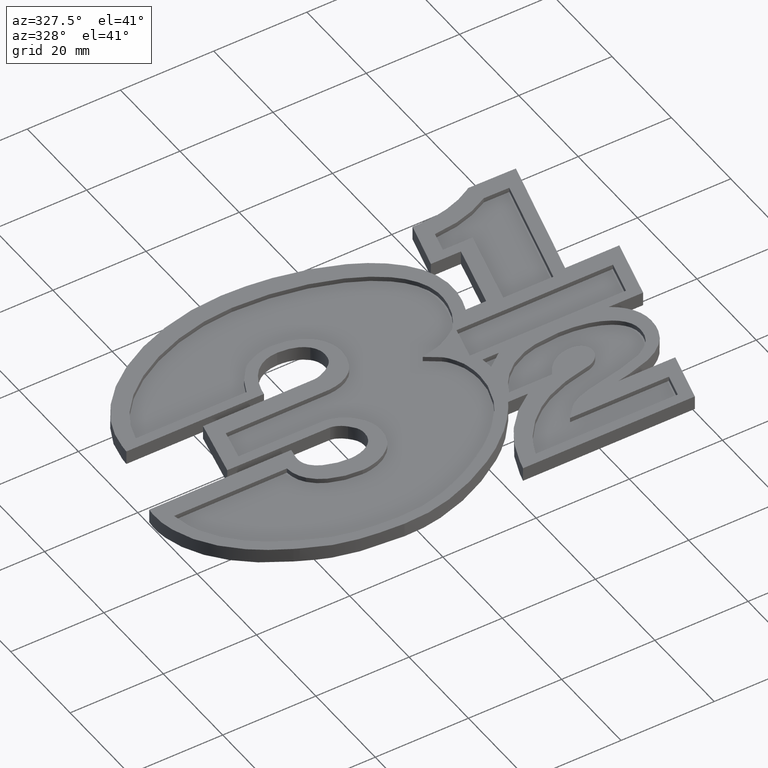
[diagram: clean part render]
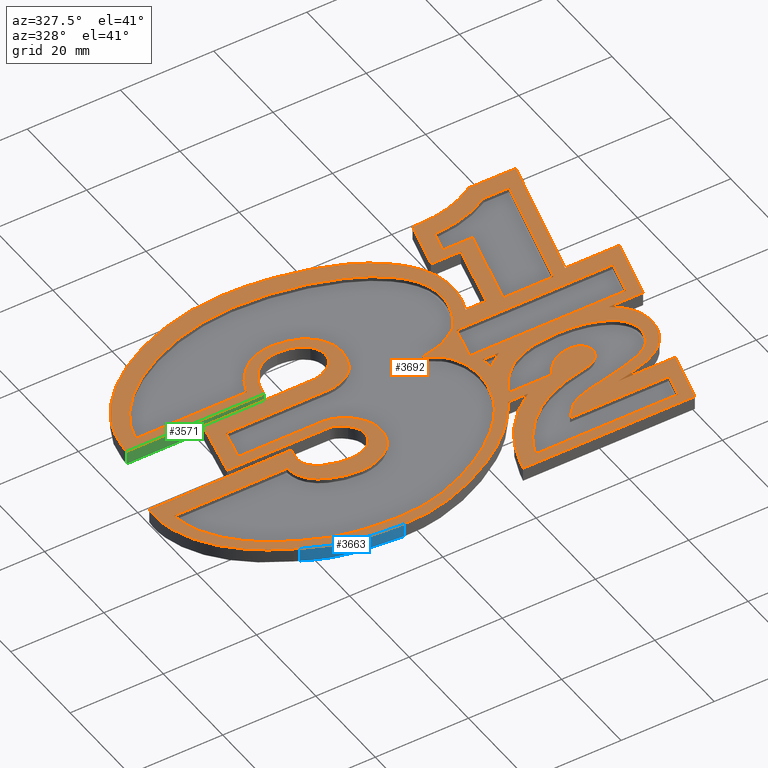
[diagram: same view with three faces highlighted in distinct colors, each labeled with its STEP entity id]
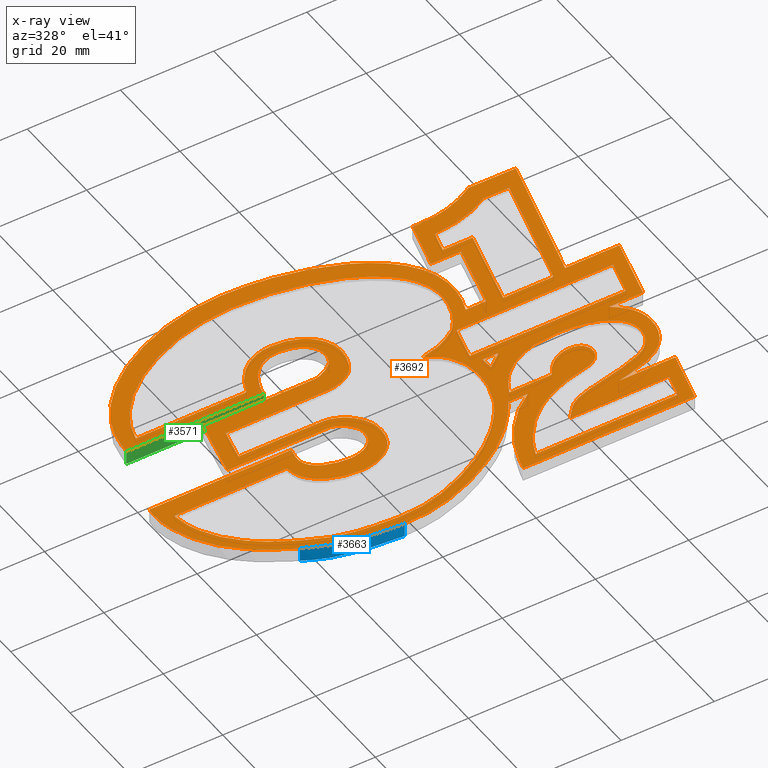
[diagram: x-ray of the same camera — body ghosted, the three highlighted faces saturated]
A machine part, auxiliary view with three faces highlighted in distinct colors.
The next image is the same camera in x-ray (body ghosted, the three faces saturated) — at least one of them is partly hidden behind the body in this view.
Their STEP definitions:

[orange] entity #3692 — the highlighted planar face has unit normal (-0, 0, 1).
#3 = EDGE_LOOP ( 'NONE', ( #5472, #5473, #5474, #5526, #5525, #5524, #5523, #5522, #5521, #5574, #5573, #5572, #5571, #5570, #5569, #5489, #5490, #5578, #3271, #2995, #3001, #3027, #3003, #3172, #3048, #2871, #2880, #2873, #2940, #2854, #3030, #3046, #3035, #3043 ) ) ;
#5 = EDGE_LOOP ( 'NONE', ( #5530, #5568, #5567, #5566, #5565, #5564, #5563, #5562, #5561 ) ) ;
#6 = EDGE_LOOP ( 'NONE', ( #5560, #5541, #5540, #5539, #5544, #5543, #5542, #5556, #5555, #5554, #5559, #5558, #5557, #5553, #5552, #5551, #5550, #5549, #5548, #5547, #5546, #5545 ) ) ;
#8 = EDGE_LOOP ( 'NONE', ( #3028, #3190, #3179, #3296, #3065, #3083, #3193, #3112, #3052, #3090, #3094, #3104, #2926, #3057, #3098, #3105, #3099, #3131, #3082, #3107, #3096, #3102, #2842, #2840, #2855, #2863, #2862, #2844, #2843, #2847, #2848, #2850, #3100, #2841, #2845, #2938, #3195, #2900, #3182, #2906, #3062, #3072, #2898, #3061, #3054, #3130, #3115, #3122, #3111, #3002, #3004, #2993, #3091, #3088, #3087, #3076, #2886, #2933, #3159, #3010, #3032, #3026, #3213, #2994, #3127, #2957, #3310, #2922, #3221, #2991, #3174 ) ) ;
#13 = VERTEX_POINT ( 'NONE', #1049 ) ;
#15 = VERTEX_POINT ( 'NONE', #1051 ) ;
#16 = VERTEX_POINT ( 'NONE', #1052 ) ;
#18 = VERTEX_POINT ( 'NONE', #5480 ) ;
#20 = VERTEX_POINT ( 'NONE', #5485 ) ;
#27 = EDGE_LOOP ( 'NONE', ( #5476, #5577, #5576 ) ) ;
#29 = EDGE_LOOP ( 'NONE', ( #5575, #5529, #5528, #5527, #5535, #5534, #5533, #5532, #5531 ) ) ;
#35 = VERTEX_POINT ( 'NONE', #1056 ) ;
#36 = VERTEX_POINT ( 'NONE', #1057 ) ;
#37 = VERTEX_POINT ( 'NONE', #1058 ) ;
#39 = VERTEX_POINT ( 'NONE', #1060 ) ;
#40 = VERTEX_POINT ( 'NONE', #1061 ) ;
#41 = VERTEX_POINT ( 'NONE', #1062 ) ;
#43 = VERTEX_POINT ( 'NONE', #1064 ) ;
#45 = VERTEX_POINT ( 'NONE', #1066 ) ;
#46 = VERTEX_POINT ( 'NONE', #1067 ) ;
#48 = VERTEX_POINT ( 'NONE', #1069 ) ;
#49 = VERTEX_POINT ( 'NONE', #1070 ) ;
#50 = VERTEX_POINT ( 'NONE', #1071 ) ;
#54 = VERTEX_POINT ( 'NONE', #1075 ) ;
#57 = VERTEX_POINT ( 'NONE', #1078 ) ;
#59 = VERTEX_POINT ( 'NONE', #1080 ) ;
#62 = VERTEX_POINT ( 'NONE', #1082 ) ;
#63 = VERTEX_POINT ( 'NONE', #1083 ) ;
#66 = VERTEX_POINT ( 'NONE', #1086 ) ;
#68 = VERTEX_POINT ( 'NONE', #1088 ) ;
#70 = VERTEX_POINT ( 'NONE', #1090 ) ;
#76 = VERTEX_POINT ( 'NONE', #1096 ) ;
#77 = VERTEX_POINT ( 'NONE', #1097 ) ;
#79 = VERTEX_POINT ( 'NONE', #1099 ) ;
#80 = VERTEX_POINT ( 'NONE', #1100 ) ;
#81 = VERTEX_POINT ( 'NONE', #1101 ) ;
#82 = VERTEX_POINT ( 'NONE', #1102 ) ;
#83 = VERTEX_POINT ( 'NONE', #1103 ) ;
#84 = VERTEX_POINT ( 'NONE', #1104 ) ;
#86 = VERTEX_POINT ( 'NONE', #1106 ) ;
#87 = VERTEX_POINT ( 'NONE', #1107 ) ;
#88 = VERTEX_POINT ( 'NONE', #1108 ) ;
#91 = VERTEX_POINT ( 'NONE', #1111 ) ;
#99 = VERTEX_POINT ( 'NONE', #1119 ) ;
#100 = VERTEX_POINT ( 'NONE', #1120 ) ;
#101 = VERTEX_POINT ( 'NONE', #1121 ) ;
#102 = VERTEX_POINT ( 'NONE', #1122 ) ;
#104 = VERTEX_POINT ( 'NONE', #1124 ) ;
#106 = VERTEX_POINT ( 'NONE', #1126 ) ;
#107 = VERTEX_POINT ( 'NONE', #1127 ) ;
#109 = VERTEX_POINT ( 'NONE', #1129 ) ;
#114 = VERTEX_POINT ( 'NONE', #1134 ) ;
#116 = VERTEX_POINT ( 'NONE', #1136 ) ;
#118 = VERTEX_POINT ( 'NONE', #1138 ) ;
#120 = VERTEX_POINT ( 'NONE', #1140 ) ;
#122 = VERTEX_POINT ( 'NONE', #1142 ) ;
#124 = VERTEX_POINT ( 'NONE', #1144 ) ;
#127 = VERTEX_POINT ( 'NONE', #1147 ) ;
#128 = VERTEX_POINT ( 'NONE', #1148 ) ;
#130 = VERTEX_POINT ( 'NONE', #1150 ) ;
#132 = VERTEX_POINT ( 'NONE', #1152 ) ;
#134 = VERTEX_POINT ( 'NONE', #1154 ) ;
#136 = VERTEX_POINT ( 'NONE', #1156 ) ;
#138 = VERTEX_POINT ( 'NONE', #1158 ) ;
#139 = VERTEX_POINT ( 'NONE', #1159 ) ;
#141 = VERTEX_POINT ( 'NONE', #1161 ) ;
#143 = VERTEX_POINT ( 'NONE', #1163 ) ;
#147 = VERTEX_POINT ( 'NONE', #1167 ) ;
#149 = VERTEX_POINT ( 'NONE', #1169 ) ;
#150 = VERTEX_POINT ( 'NONE', #1170 ) ;
#151 = VERTEX_POINT ( 'NONE', #1171 ) ;
#154 = VERTEX_POINT ( 'NONE', #1174 ) ;
#155 = VERTEX_POINT ( 'NONE', #1175 ) ;
#156 = VERTEX_POINT ( 'NONE', #1176 ) ;
#160 = VERTEX_POINT ( 'NONE', #1180 ) ;
#161 = VERTEX_POINT ( 'NONE', #1181 ) ;
#165 = VERTEX_POINT ( 'NONE', #1185 ) ;
#168 = VERTEX_POINT ( 'NONE', #1188 ) ;
#169 = VERTEX_POINT ( 'NONE', #1189 ) ;
#172 = VERTEX_POINT ( 'NONE', #1192 ) ;
#174 = VERTEX_POINT ( 'NONE', #1194 ) ;
#175 = VERTEX_POINT ( 'NONE', #1195 ) ;
#176 = VERTEX_POINT ( 'NONE', #1196 ) ;
#177 = VERTEX_POINT ( 'NONE', #1197 ) ;
#179 = VERTEX_POINT ( 'NONE', #1199 ) ;
#183 = VERTEX_POINT ( 'NONE', #1203 ) ;
#185 = VERTEX_POINT ( 'NONE', #1205 ) ;
#186 = VERTEX_POINT ( 'NONE', #1206 ) ;
#404 = VERTEX_POINT ( 'NONE', #1211 ) ;
#405 = VERTEX_POINT ( 'NONE', #1213 ) ;
#406 = VERTEX_POINT ( 'NONE', #1207 ) ;
#423 = VERTEX_POINT ( 'NONE', #1218 ) ;
#425 = VERTEX_POINT ( 'NONE', #1215 ) ;
#438 = VERTEX_POINT ( 'NONE', #1222 ) ;
#439 = VERTEX_POINT ( 'NONE', #1216 ) ;
#445 = VECTOR ( 'NONE', #4695, 999.9999999999998900 ) ;
#452 = VECTOR ( 'NONE', #4669, 999.9999999999998900 ) ;
#453 = VECTOR ( 'NONE', #5039, 1000.000000000000100 ) ;
#470 = VECTOR ( 'NONE', #5079, 1000.000000000000100 ) ;
#475 = VECTOR ( 'NONE', #5117, 999.9999999999998900 ) ;
#493 = VECTOR ( 'NONE', #4672, 1000.000000000000000 ) ;
#508 = VECTOR ( 'NONE', #4663, 999.9999999999998900 ) ;
#518 = VECTOR ( 'NONE', #5093, 1000.000000000000000 ) ;
#521 = VECTOR ( 'NONE', #5193, 1000.000000000000000 ) ;
#526 = VECTOR ( 'NONE', #4522, 1000.000000000000000 ) ;
#527 = VERTEX_POINT ( 'NONE', #1224 ) ;
#529 = EDGE_CURVE ( 'NONE', #842, #838, #3326, .T. ) ;
#532 = EDGE_CURVE ( 'NONE', #3007, #3128, #1236, .T. ) ;
#533 = EDGE_CURVE ( 'NONE', #2921, #2865, #1250, .T. ) ;
#536 = EDGE_CURVE ( 'NONE', #35, #45, #3321, .T. ) ;
#539 = EDGE_CURVE ( 'NONE', #138, #35, #3322, .T. ) ;
#542 = EDGE_CURVE ( 'NONE', #136, #138, #3319, .T. ) ;
#553 = EDGE_CURVE ( 'NONE', #425, #826, #1338, .T. ) ;
#556 = EDGE_CURVE ( 'NONE', #826, #824, #1362, .T. ) ;
#557 = EDGE_CURVE ( 'NONE', #527, #425, #1365, .T. ) ;
#558 = EDGE_CURVE ( 'NONE', #830, #819, #3324, .T. ) ;
#561 = EDGE_CURVE ( 'NONE', #824, #836, #1378, .T. ) ;
#568 = EDGE_CURVE ( 'NONE', #836, #839, #1389, .T. ) ;
#572 = EDGE_CURVE ( 'NONE', #859, #830, #1411, .T. ) ;
#573 = EDGE_CURVE ( 'NONE', #819, #527, #1414, .T. ) ;
#576 = EDGE_CURVE ( 'NONE', #5686, #855, #1440, .T. ) ;
#579 = EDGE_CURVE ( 'NONE', #855, #853, #1419, .T. ) ;
#581 = EDGE_CURVE ( 'NONE', #854, #5686, #1417, .T. ) ;
#585 = EDGE_CURVE ( 'NONE', #853, #859, #1447, .T. ) ;
#591 = EDGE_CURVE ( 'NONE', #860, #854, #1477, .T. ) ;
#592 = EDGE_CURVE ( 'NONE', #2852, #2941, #1488, .T. ) ;
#595 = EDGE_CURVE ( 'NONE', #169, #109, #1493, .T. ) ;
#601 = EDGE_CURVE ( 'NONE', #91, #104, #3329, .T. ) ;
#606 = EDGE_CURVE ( 'NONE', #107, #161, #4197, .T. ) ;
#607 = EDGE_CURVE ( 'NONE', #168, #169, #1544, .T. ) ;
#608 = EDGE_CURVE ( 'NONE', #2941, #54, #1549, .T. ) ;
#612 = EDGE_CURVE ( 'NONE', #15, #79, #1556, .T. ) ;
#614 = EDGE_CURVE ( 'NONE', #2861, #3155, #1569, .T. ) ;
#617 = EDGE_CURVE ( 'NONE', #165, #101, #4200, .T. ) ;
#622 = EDGE_CURVE ( 'NONE', #104, #106, #4201, .T. ) ;
#626 = EDGE_CURVE ( 'NONE', #100, #174, #4203, .T. ) ;
#630 = EDGE_CURVE ( 'NONE', #101, #156, #1621, .T. ) ;
#634 = EDGE_CURVE ( 'NONE', #3155, #2852, #1626, .T. ) ;
#637 = EDGE_CURVE ( 'NONE', #161, #102, #4205, .T. ) ;
#638 = EDGE_CURVE ( 'NONE', #81, #91, #4206, .T. ) ;
#641 = EDGE_CURVE ( 'NONE', #2859, #2861, #1657, .T. ) ;
#645 = EDGE_CURVE ( 'NONE', #79, #81, #1669, .T. ) ;
#647 = EDGE_CURVE ( 'NONE', #99, #107, #1676, .T. ) ;
#650 = EDGE_CURVE ( 'NONE', #54, #168, #1686, .T. ) ;
#659 = EDGE_CURVE ( 'NONE', #82, #165, #4212, .T. ) ;
#660 = EDGE_CURVE ( 'NONE', #3194, #3000, #1719, .T. ) ;
#661 = EDGE_CURVE ( 'NONE', #106, #82, #4213, .T. ) ;
#662 = EDGE_CURVE ( 'NONE', #156, #99, #4214, .T. ) ;
#666 = EDGE_CURVE ( 'NONE', #3000, #2859, #4215, .T. ) ;
#670 = EDGE_CURVE ( 'NONE', #102, #100, #4216, .T. ) ;
#671 = EDGE_CURVE ( 'NONE', #174, #160, #4217, .T. ) ;
#673 = EDGE_CURVE ( 'NONE', #109, #175, #1764, .T. ) ;
#677 = EDGE_CURVE ( 'NONE', #16, #68, #4219, .T. ) ;
#678 = EDGE_CURVE ( 'NONE', #13, #16, #1778, .T. ) ;
#682 = EDGE_CURVE ( 'NONE', #172, #13, #1760, .T. ) ;
#685 = EDGE_CURVE ( 'NONE', #177, #172, #1784, .T. ) ;
#688 = EDGE_CURVE ( 'NONE', #176, #177, #1790, .T. ) ;
#691 = EDGE_CURVE ( 'NONE', #155, #176, #1799, .T. ) ;
#694 = EDGE_CURVE ( 'NONE', #88, #155, #4221, .T. ) ;
#697 = EDGE_CURVE ( 'NONE', #150, #88, #1830, .T. ) ;
#700 = EDGE_CURVE ( 'NONE', #139, #150, #1829, .T. ) ;
#703 = EDGE_CURVE ( 'NONE', #186, #139, #4223, .T. ) ;
#706 = EDGE_CURVE ( 'NONE', #141, #186, #1859, .T. ) ;
#709 = EDGE_CURVE ( 'NONE', #183, #141, #4225, .T. ) ;
#712 = EDGE_CURVE ( 'NONE', #45, #183, #4227, .T. ) ;
#745 = VECTOR ( 'NONE', #4034, 1000.000000000000100 ) ;
#771 = VECTOR ( 'NONE', #4154, 999.9999999999998900 ) ;
#772 = AXIS2_PLACEMENT_3D ( 'NONE', #3813, #3814, #3815 ) ;
#791 = VECTOR ( 'NONE', #4007, 1000.000000000000100 ) ;
#799 = VECTOR ( 'NONE', #4078, 1000.000000000000100 ) ;
#800 = VECTOR ( 'NONE', #4075, 1000.000000000000000 ) ;
#805 = VECTOR ( 'NONE', #4018, 1000.000000000000000 ) ;
#819 = VERTEX_POINT ( 'NONE', #1905 ) ;
#822 = VERTEX_POINT ( 'NONE', #1908 ) ;
#824 = VERTEX_POINT ( 'NONE', #1909 ) ;
#826 = VERTEX_POINT ( 'NONE', #1910 ) ;
#829 = VERTEX_POINT ( 'NONE', #1912 ) ;
#830 = VERTEX_POINT ( 'NONE', #1913 ) ;
#834 = VERTEX_POINT ( 'NONE', #1917 ) ;
#836 = VERTEX_POINT ( 'NONE', #1919 ) ;
#838 = VERTEX_POINT ( 'NONE', #1921 ) ;
#839 = VERTEX_POINT ( 'NONE', #1922 ) ;
#840 = VERTEX_POINT ( 'NONE', #1923 ) ;
#842 = VERTEX_POINT ( 'NONE', #1925 ) ;
#843 = VERTEX_POINT ( 'NONE', #1926 ) ;
#844 = VERTEX_POINT ( 'NONE', #1927 ) ;
#853 = VERTEX_POINT ( 'NONE', #1936 ) ;
#854 = VERTEX_POINT ( 'NONE', #1937 ) ;
#855 = VERTEX_POINT ( 'NONE', #1938 ) ;
#859 = VERTEX_POINT ( 'NONE', #1942 ) ;
#860 = VERTEX_POINT ( 'NONE', #1943 ) ;
#1049 = CARTESIAN_POINT ( 'NONE',  ( 116.9158609733752200, 115.1394113588162200, 1.000000000000000000 ) ) ;
#1051 = CARTESIAN_POINT ( 'NONE',  ( 62.10783689853556700, 145.0547257502088900, 1.000000000000000000 ) ) ;
#1052 = CARTESIAN_POINT ( 'NONE',  ( 119.0652560466226100, 117.6216026559387000, 1.000000000000000000 ) ) ;
#1056 = CARTESIAN_POINT ( 'NONE',  ( 130.4495740776307000, 128.9959299100396200, 1.000000000000000000 ) ) ;
#1057 = CARTESIAN_POINT ( 'NONE',  ( 110.8280327413902000, 139.3536094864432200, 1.000000000000000000 ) ) ;
#1058 = CARTESIAN_POINT ( 'NONE',  ( 111.9890299199194000, 144.0856203902081300, 1.000000000000000000 ) ) ;
#1060 = CARTESIAN_POINT ( 'NONE',  ( 113.3395073501374000, 148.9829958772650400, 1.000000000000000000 ) ) ;
#1061 = CARTESIAN_POINT ( 'NONE',  ( 71.36877032720988700, 152.6053415252310100, 1.000000000000000000 ) ) ;
#1062 = CARTESIAN_POINT ( 'NONE',  ( 108.1079576010111900, 139.4199275745343100, 1.000000000000000000 ) ) ;
#1064 = CARTESIAN_POINT ( 'NONE',  ( 106.3351050433560500, 141.7493304922268500, 1.000000000000000000 ) ) ;
#1066 = CARTESIAN_POINT ( 'NONE',  ( 126.8067301115275100, 125.2945193206871900, 1.000000000000000000 ) ) ;
#1067 = CARTESIAN_POINT ( 'NONE',  ( 109.7128553328148000, 145.6993031154991900, 1.000000000000000000 ) ) ;
#1069 = CARTESIAN_POINT ( 'NONE',  ( 122.7067219745317000, 146.6020903874089100, 1.000000000000000000 ) ) ;
#1070 = CARTESIAN_POINT ( 'NONE',  ( 89.83310408995492900, 158.0243044687547100, 1.000000000000000000 ) ) ;
#1071 = CARTESIAN_POINT ( 'NONE',  ( 89.88598630565350300, 147.3221153438261100, 1.000000000000000000 ) ) ;
#1075 = CARTESIAN_POINT ( 'NONE',  ( 139.4629773956897900, 109.1426920300060300, 1.000000000000000000 ) ) ;
#1078 = CARTESIAN_POINT ( 'NONE',  ( 106.8396456981165100, 144.4537288428071000, 1.000000000000000000 ) ) ;
#1080 = CARTESIAN_POINT ( 'NONE',  ( 103.4923909246476900, 143.6754817726892100, 1.000000000000000000 ) ) ;
#1082 = CARTESIAN_POINT ( 'NONE',  ( 112.0737792688566100, 147.2392607974059000, 1.000000000000000000 ) ) ;
#1083 = CARTESIAN_POINT ( 'NONE',  ( 127.6738606451648900, 136.1110856157261000, 1.000000000000000000 ) ) ;
#1086 = CARTESIAN_POINT ( 'NONE',  ( 81.58468422439550200, 173.6564252330759400, 1.000000000000000000 ) ) ;
#1088 = CARTESIAN_POINT ( 'NONE',  ( 123.9634928075507900, 119.9342952551869000, 1.000000000000000000 ) ) ;
#1090 = CARTESIAN_POINT ( 'NONE',  ( 47.59244383575813900, 152.6053415252310100, 1.000000000000000000 ) ) ;
#1096 = CARTESIAN_POINT ( 'NONE',  ( 108.7740668130843000, 138.0362049728837200, 1.000000000000000000 ) ) ;
#1097 = CARTESIAN_POINT ( 'NONE',  ( 115.3535101708144200, 157.2197024181745900, 1.000000000000000000 ) ) ;
#1099 = CARTESIAN_POINT ( 'NONE',  ( 60.60009085941596400, 138.4286013486537000, 1.000000000000000000 ) ) ;
#1100 = CARTESIAN_POINT ( 'NONE',  ( 112.4306911611284900, 134.6866970149395100, 1.000000000000000000 ) ) ;
#1101 = CARTESIAN_POINT ( 'NONE',  ( 78.86736516040468800, 138.3882937314762100, 1.000000000000000000 ) ) ;
#1102 = CARTESIAN_POINT ( 'NONE',  ( 77.55082192071645900, 123.2198828194697000, 1.000000000000000000 ) ) ;
#1103 = CARTESIAN_POINT ( 'NONE',  ( 81.86166990140958400, 160.9047488039721000, 1.000000000000000000 ) ) ;
#1104 = CARTESIAN_POINT ( 'NONE',  ( 91.97474769836048800, 152.8504600690064900, 1.000000000000000000 ) ) ;
#1106 = CARTESIAN_POINT ( 'NONE',  ( 136.5597954302698200, 146.6206939030292100, 1.000000000000000000 ) ) ;
#1107 = CARTESIAN_POINT ( 'NONE',  ( 112.2291530752413000, 137.2405462981552100, 1.000000000000000000 ) ) ;
#1108 = CARTESIAN_POINT ( 'NONE',  ( 121.5912000564078000, 124.0542849459972000, 1.000000000000000000 ) ) ;
#1111 = CARTESIAN_POINT ( 'NONE',  ( 84.00520831233203000, 136.0332264577594100, 1.000000000000000000 ) ) ;
#1119 = CARTESIAN_POINT ( 'NONE',  ( 56.61015352317386400, 113.3734554130772000, 1.000000000000000000 ) ) ;
#1120 = CARTESIAN_POINT ( 'NONE',  ( 106.4818725319733100, 124.2434206881374100, 1.000000000000000000 ) ) ;
#1121 = CARTESIAN_POINT ( 'NONE',  ( 66.21990286972975100, 130.9165706430663900, 1.000000000000000000 ) ) ;
#1122 = CARTESIAN_POINT ( 'NONE',  ( 99.39548337358863300, 116.9050227950068000, 1.000000000000000000 ) ) ;
#1124 = CARTESIAN_POINT ( 'NONE',  ( 86.33977726791158600, 130.7398372446731100, 1.000000000000000000 ) ) ;
#1126 = CARTESIAN_POINT ( 'NONE',  ( 84.34489472717768900, 125.8388444073566000, 1.000000000000000000 ) ) ;
#1127 = CARTESIAN_POINT ( 'NONE',  ( 57.65591225772144700, 112.8591026571294000, 1.000000000000000000 ) ) ;
#1129 = CARTESIAN_POINT ( 'NONE',  ( 140.0607014623807100, 119.0304605822216100, 1.000000000000000000 ) ) ;
#1134 = CARTESIAN_POINT ( 'NONE',  ( 122.3925292662769100, 166.6105159466429200, 1.000000000000000000 ) ) ;
#1136 = CARTESIAN_POINT ( 'NONE',  ( 126.8718424161987000, 166.6056928129635300, 1.000000000000000000 ) ) ;
#1138 = CARTESIAN_POINT ( 'NONE',  ( 128.7904160919343000, 166.6034535008981500, 1.000000000000000000 ) ) ;
#1140 = CARTESIAN_POINT ( 'NONE',  ( 128.3256727109740900, 164.7422406649919300, 1.000000000000000000 ) ) ;
#1142 = CARTESIAN_POINT ( 'NONE',  ( 124.5450249254609900, 149.5988066952535000, 1.000000000000000000 ) ) ;
#1144 = CARTESIAN_POINT ( 'NONE',  ( 135.3147379219005000, 149.6182714847450900, 1.000000000000000000 ) ) ;
#1147 = CARTESIAN_POINT ( 'NONE',  ( 123.5414686106077100, 171.0567561799063300, 1.000000000000000000 ) ) ;
#1148 = CARTESIAN_POINT ( 'NONE',  ( 141.7760145044866000, 174.6076160965533300, 1.000000000000000000 ) ) ;
#1150 = CARTESIAN_POINT ( 'NONE',  ( 136.3393093192138100, 174.6553306690240100, 1.000000000000000000 ) ) ;
#1152 = CARTESIAN_POINT ( 'NONE',  ( 111.3916503627771000, 126.9991525667887800, 1.000000000000000000 ) ) ;
#1154 = CARTESIAN_POINT ( 'NONE',  ( 120.5662841495458900, 126.9991525667887800, 1.000000000000000000 ) ) ;
#1156 = CARTESIAN_POINT ( 'NONE',  ( 120.8932237110961000, 127.4521826230990900, 1.000000000000000000 ) ) ;
#1158 = CARTESIAN_POINT ( 'NONE',  ( 126.6382649422987900, 131.3709787375708200, 1.000000000000000000 ) ) ;
#1159 = CARTESIAN_POINT ( 'NONE',  ( 121.7572536587968000, 124.0994156968539800, 1.000000000000000000 ) ) ;
#1161 = CARTESIAN_POINT ( 'NONE',  ( 122.4321478643572000, 124.2582345987240200, 1.000000000000000000 ) ) ;
#1163 = CARTESIAN_POINT ( 'NONE',  ( 140.8044975776460900, 129.1016943414368300, 1.000000000000000000 ) ) ;
#1167 = CARTESIAN_POINT ( 'NONE',  ( 122.7067219745317000, 146.5955447059869000, 1.000000000000000000 ) ) ;
#1169 = CARTESIAN_POINT ( 'NONE',  ( 115.6987087384363900, 137.2364121835728400, 1.000000000000000000 ) ) ;
#1170 = CARTESIAN_POINT ( 'NONE',  ( 121.5912000564078000, 124.0549739650942900, 1.000000000000000000 ) ) ;
#1171 = CARTESIAN_POINT ( 'NONE',  ( 112.6063910308762100, 146.6020903874089100, 1.000000000000000000 ) ) ;
#1174 = CARTESIAN_POINT ( 'NONE',  ( 146.1843586874122100, 146.6272395844512200, 1.000000000000000000 ) ) ;
#1175 = CARTESIAN_POINT ( 'NONE',  ( 106.3339056808818000, 110.1264529182291900, 1.000000000000000000 ) ) ;
#1176 = CARTESIAN_POINT ( 'NONE',  ( 41.97056476815319600, 130.8559369625259900, 1.000000000000000000 ) ) ;
#1180 = CARTESIAN_POINT ( 'NONE',  ( 108.9339192435999000, 137.4557063836190900, 1.000000000000000000 ) ) ;
#1181 = CARTESIAN_POINT ( 'NONE',  ( 76.10457083600857700, 108.7401464949647000, 1.000000000000000000 ) ) ;
#1185 = CARTESIAN_POINT ( 'NONE',  ( 67.74573566014690600, 126.9378298671512900, 1.000000000000000000 ) ) ;
#1188 = CARTESIAN_POINT ( 'NONE',  ( 141.5141872476075900, 117.1587402050852900, 1.000000000000000000 ) ) ;
#1189 = CARTESIAN_POINT ( 'NONE',  ( 141.9930555200573100, 119.0308050917701200, 1.000000000000000000 ) ) ;
#1192 = CARTESIAN_POINT ( 'NONE',  ( 120.1993814803668000, 115.1397558683648200, 1.000000000000000000 ) ) ;
#1194 = CARTESIAN_POINT ( 'NONE',  ( 106.5473293461930000, 124.3385053235303000, 1.000000000000000000 ) ) ;
#1195 = CARTESIAN_POINT ( 'NONE',  ( 129.7905273113024100, 119.0294270535760000, 1.000000000000000000 ) ) ;
#1196 = CARTESIAN_POINT ( 'NONE',  ( 136.8450493364485100, 110.1257638991321000, 1.000000000000000000 ) ) ;
#1197 = CARTESIAN_POINT ( 'NONE',  ( 138.1286919142526100, 115.1414784161074000, 1.000000000000000000 ) ) ;
#1199 = CARTESIAN_POINT ( 'NONE',  ( 144.3274522208626000, 139.3126128501687900, 1.000000000000000000 ) ) ;
#1203 = CARTESIAN_POINT ( 'NONE',  ( 122.5437689580793000, 124.2985422159014100, 1.000000000000000000 ) ) ;
#1205 = CARTESIAN_POINT ( 'NONE',  ( 136.5597954302698200, 146.6272395844511900, 1.000000000000000000 ) ) ;
#1206 = CARTESIAN_POINT ( 'NONE',  ( 122.3188042228925000, 124.2358414780699000, 1.000000000000000000 ) ) ;
#1207 = CARTESIAN_POINT ( 'NONE',  ( 143.8044867262017000, 129.9920653971894900, 1.000000000000000000 ) ) ;
#1211 = CARTESIAN_POINT ( 'NONE',  ( 132.5862222975825900, 119.6423095404019000, 1.000000000000000000 ) ) ;
#1213 = CARTESIAN_POINT ( 'NONE',  ( 150.0411430831493900, 150.5158772410169100, 1.000000000000000000 ) ) ;
#1215 = CARTESIAN_POINT ( 'NONE',  ( 120.9262966277545100, 173.8164360459556100, 1.000000000000000000 ) ) ;
#1216 = CARTESIAN_POINT ( 'NONE',  ( 105.6631455899037100, 172.6425197593567000, 1.000000000000000000 ) ) ;
#1218 = CARTESIAN_POINT ( 'NONE',  ( 139.2945122264611100, 137.2074733814967800, 1.000000000000000000 ) ) ;
#1220 = CARTESIAN_POINT ( 'NONE',  ( 65.02255993383117500, 177.5450628896415400, 1.000000000000000000 ) ) ;
#1222 = CARTESIAN_POINT ( 'NONE',  ( 146.9477918469436000, 138.3309190192366900, 1.000000000000000000 ) ) ;
#1224 = CARTESIAN_POINT ( 'NONE',  ( 121.2232638585831000, 174.9657198998349700, 1.000000000000000000 ) ) ;
#1225 = CARTESIAN_POINT ( 'NONE',  ( 45.66577418563217300, 167.1047010215918900, 1.000000000000000000 ) ) ;
#1230 = CARTESIAN_POINT ( 'NONE',  ( 81.58468422439550200, 177.5450628896415400, 1.000000000000000000 ) ) ;
#1231 = CARTESIAN_POINT ( 'NONE',  ( 44.37024602840397600, 152.1233587944344100, 1.000000000000000000 ) ) ;
#1236 = LINE ( 'NONE', #1247, #2670 ) ;
#1247 = CARTESIAN_POINT ( 'NONE',  ( 96.29027885069766100, 134.8798864796590400, 1.000000000000000000 ) ) ;
#1248 = CARTESIAN_POINT ( 'NONE',  ( 130.6338866860915000, 127.2323855311402000, 1.000000000000000000 ) ) ;
#1249 = DIRECTION ( 'NONE',  ( -0.9999969301627278400, -0.002477834764551333200, 0.0000000000000000000 ) ) ;
#1250 = LINE ( 'NONE', #1251, #2691 ) ;
#1251 = CARTESIAN_POINT ( 'NONE',  ( 96.28302411689009000, 134.8831940434031400, 1.000000000000000000 ) ) ;
#1252 = DIRECTION ( 'NONE',  ( -0.9999967461633196800, -0.002551012107600253000, 0.0000000000000000000 ) ) ;
#1257 = CARTESIAN_POINT ( 'NONE',  ( 130.4495740776307000, 128.9959299100396200, 1.000000000000000000 ) ) ;
#1261 = CARTESIAN_POINT ( 'NONE',  ( 129.2458577150844400, 131.5859526958504100, 1.000000000000000000 ) ) ;
#1262 = CARTESIAN_POINT ( 'NONE',  ( 128.9998778974375000, 125.5721940167983100, 1.000000000000000000 ) ) ;
#1263 = CARTESIAN_POINT ( 'NONE',  ( 126.8067301115275100, 125.2945193206871900, 1.000000000000000000 ) ) ;
#1268 = CARTESIAN_POINT ( 'NONE',  ( 126.6382649422987900, 131.3709787375708200, 1.000000000000000000 ) ) ;
#1272 = CARTESIAN_POINT ( 'NONE',  ( 130.3210720160309100, 130.2261735078223000, 1.000000000000000000 ) ) ;
#1273 = CARTESIAN_POINT ( 'NONE',  ( 130.4495740776307000, 128.9959299100396200, 1.000000000000000000 ) ) ;
#1274 = CARTESIAN_POINT ( 'NONE',  ( 121.2725287240221900, 128.2066585343688400, 1.000000000000000000 ) ) ;
#1278 = CARTESIAN_POINT ( 'NONE',  ( 120.8932237110961000, 127.4521826230990900, 1.000000000000000000 ) ) ;
#1283 = CARTESIAN_POINT ( 'NONE',  ( 122.9447780725624000, 131.0664322966748000, 1.000000000000000000 ) ) ;
#1284 = CARTESIAN_POINT ( 'NONE',  ( 126.6382649422987900, 131.3709787375708200, 1.000000000000000000 ) ) ;
#1338 = LINE ( 'NONE', #1354, #2650 ) ;
#1348 = CARTESIAN_POINT ( 'NONE',  ( 129.9338432834888100, 174.7838188582138100, 1.000000000000000000 ) ) ;
#1352 = CARTESIAN_POINT ( 'NONE',  ( 134.9915879653840100, 178.2418334515333000, 1.000000000000000000 ) ) ;
#1354 = CARTESIAN_POINT ( 'NONE',  ( 85.98384389351213000, 38.58350808496328500, 1.000000000000000000 ) ) ;
#1355 = DIRECTION ( 'NONE',  ( -0.2501708905845536100, -0.9682016967058729700, 0.0000000000000000000 ) ) ;
#1362 = LINE ( 'NONE', #1363, #2654 ) ;
#1363 = CARTESIAN_POINT ( 'NONE',  ( 86.00219606288393900, 38.57711740297657600, 1.000000000000000000 ) ) ;
#1364 = DIRECTION ( 'NONE',  ( -0.2500288220626235600, -0.9682383942697050400, 0.0000000000000000000 ) ) ;
#1365 = LINE ( 'NONE', #1366, #2611 ) ;
#1366 = CARTESIAN_POINT ( 'NONE',  ( 85.98308353820944200, 38.58376914722472200, 1.000000000000000000 ) ) ;
#1367 = DIRECTION ( 'NONE',  ( -0.2501764463747711600, -0.9682002611439903800, 0.0000000000000000000 ) ) ;
#1369 = CARTESIAN_POINT ( 'NONE',  ( 135.0384412639834900, 178.2743896038688800, 1.000000000000000000 ) ) ;
#1371 = CARTESIAN_POINT ( 'NONE',  ( 122.4100992532516000, 174.9409152123411700, 1.000000000000000000 ) ) ;
#1378 = LINE ( 'NONE', #1379, #2641 ) ;
#1379 = CARTESIAN_POINT ( 'NONE',  ( 96.67313399135143500, 164.5268267596391900, 1.000000000000000000 ) ) ;
#1380 = DIRECTION ( 'NONE',  ( 0.9999994290834772800, -0.001068565730120970900, 0.0000000000000000000 ) ) ;
#1389 = LINE ( 'NONE', #1400, #2640 ) ;
#1400 = CARTESIAN_POINT ( 'NONE',  ( 96.67862029302996500, 164.5278344679643700, 1.000000000000000000 ) ) ;
#1401 = DIRECTION ( 'NONE',  ( 0.9999993826220072700, -0.001111195574221244900, 0.0000000000000000000 ) ) ;
#1411 = LINE ( 'NONE', #1412, #2614 ) ;
#1412 = CARTESIAN_POINT ( 'NONE',  ( 42.25809086187174300, 112.9635053906692300, 1.000000000000000000 ) ) ;
#1413 = DIRECTION ( 'NONE',  ( -0.8177192686548056000, -0.5756172319090612200, 0.0000000000000000000 ) ) ;
#1414 = LINE ( 'NONE', #1415, #2581 ) ;
#1415 = CARTESIAN_POINT ( 'NONE',  ( 99.45250218678035000, 175.4207256590135000, 1.000000000000000000 ) ) ;
#1416 = DIRECTION ( 'NONE',  ( -0.9997816695564654100, 0.02089529178754012700, 0.0000000000000000000 ) ) ;
#1417 = LINE ( 'NONE', #1456, #2585 ) ;
#1419 = LINE ( 'NONE', #1450, #2595 ) ;
#1440 = LINE ( 'NONE', #1441, #2636 ) ;
#1441 = CARTESIAN_POINT ( 'NONE',  ( 97.78053919198305300, 178.8790841206087200, 1.000000000000000000 ) ) ;
#1442 = DIRECTION ( 'NONE',  ( -0.9999621202949187100, 0.008703905749175622200, 0.0000000000000000000 ) ) ;
#1447 = LINE ( 'NONE', #1468, #2592 ) ;
#1450 = CARTESIAN_POINT ( 'NONE',  ( 97.79169098851035400, 178.8825585435193100, 1.000000000000000000 ) ) ;
#1451 = DIRECTION ( 'NONE',  ( -0.9999614405148720100, 0.008781656075132648900, 0.0000000000000000000 ) ) ;
#1456 = CARTESIAN_POINT ( 'NONE',  ( 108.0009625009592600, 32.89243941638501000, 1.000000000000000000 ) ) ;
#1457 = DIRECTION ( 'NONE',  ( 0.2503393205740343000, 0.9681581609295718500, 0.0000000000000000000 ) ) ;
#1468 = CARTESIAN_POINT ( 'NONE',  ( 97.81270341568401200, 178.8879589542795500, 1.000000000000000000 ) ) ;
#1469 = DIRECTION ( 'NONE',  ( -0.9999601426891565600, 0.008928215559767256600, 0.0000000000000000000 ) ) ;
#1477 = LINE ( 'NONE', #1486, #2682 ) ;
#1486 = CARTESIAN_POINT ( 'NONE',  ( 108.0053592951371000, 32.89166932696652200, 1.000000000000000000 ) ) ;
#1487 = DIRECTION ( 'NONE',  ( 0.2503102988863304400, 0.9681656646831863200, 0.0000000000000000000 ) ) ;
#1488 = LINE ( 'NONE', #1489, #2638 ) ;
#1489 = CARTESIAN_POINT ( 'NONE',  ( 96.53564180846736100, 108.0144232585867000, 1.000000000000000000 ) ) ;
#1490 = DIRECTION ( 'NONE',  ( 1.000000000000000000, 0.0000000000000000000, 0.0000000000000000000 ) ) ;
#1493 = LINE ( 'NONE', #1507, #2605 ) ;
#1507 = CARTESIAN_POINT ( 'NONE',  ( 96.52081463087267800, 119.0226980778839200, 1.000000000000000000 ) ) ;
#1508 = DIRECTION ( 'NONE',  ( -0.9999999841072476600, -0.0001782848964298285000, 0.0000000000000000000 ) ) ;
#1510 = CARTESIAN_POINT ( 'NONE',  ( 84.00520831233203000, 136.0332264577594100, 1.000000000000000000 ) ) ;
#1519 = CARTESIAN_POINT ( 'NONE',  ( 85.50950925596637800, 134.5287532593507900, 1.000000000000000000 ) ) ;
#1527 = CARTESIAN_POINT ( 'NONE',  ( 86.33977726791158600, 132.9722591191149100, 1.000000000000000000 ) ) ;
#1528 = CARTESIAN_POINT ( 'NONE',  ( 86.33977726791158600, 130.7398372446731100, 1.000000000000000000 ) ) ;
#1534 = CARTESIAN_POINT ( 'NONE',  ( 61.79519448324911900, 110.8144384866336100, 1.000000000000000000 ) ) ;
#1541 = CARTESIAN_POINT ( 'NONE',  ( 57.65591225772144700, 112.8591026571294000, 1.000000000000000000 ) ) ;
#1544 = LINE ( 'NONE', #1547, #2661 ) ;
#1545 = CARTESIAN_POINT ( 'NONE',  ( 65.06476235352548100, 109.1986887040514100, 1.000000000000000000 ) ) ;
#1546 = CARTESIAN_POINT ( 'NONE',  ( 76.10457083600857700, 108.7401464949647000, 1.000000000000000000 ) ) ;
#1547 = CARTESIAN_POINT ( 'NONE',  ( 119.2323810136268300, 30.05130489900183100, 1.000000000000000000 ) ) ;
#1548 = DIRECTION ( 'NONE',  ( 0.2478176838542884000, 0.9688066863771617200, 0.0000000000000000000 ) ) ;
#1549 = LINE ( 'NONE', #1550, #2583 ) ;
#1550 = CARTESIAN_POINT ( 'NONE',  ( 119.2252393215488000, 30.05129323189862600, 1.000000000000000000 ) ) ;
#1551 = DIRECTION ( 'NONE',  ( 0.2478913610403141200, 0.9687878370012602500, 0.0000000000000000000 ) ) ;
#1556 = LINE ( 'NONE', #1563, #2667 ) ;
#1563 = CARTESIAN_POINT ( 'NONE',  ( 40.17839030737962200, 48.68090854216829700, 1.000000000000000000 ) ) ;
#1565 = DIRECTION ( 'NONE',  ( -0.2218741813064825700, -0.9750753035892038000, 0.0000000000000000000 ) ) ;
#1566 = CARTESIAN_POINT ( 'NONE',  ( 66.79609508963778800, 128.0788454918661000, 1.000000000000000000 ) ) ;
#1569 = LINE ( 'NONE', #1570, #2593 ) ;
#1570 = CARTESIAN_POINT ( 'NONE',  ( 96.53564180846736100, 108.0151122776837100, 1.000000000000000000 ) ) ;
#1571 = DIRECTION ( 'NONE',  ( 1.000000000000000000, 0.0000000000000000000, 0.0000000000000000000 ) ) ;
#1576 = CARTESIAN_POINT ( 'NONE',  ( 67.74573566014690600, 126.9378298671512900, 1.000000000000000000 ) ) ;
#1581 = CARTESIAN_POINT ( 'NONE',  ( 66.28277586233555500, 129.4327680175692900, 1.000000000000000000 ) ) ;
#1582 = CARTESIAN_POINT ( 'NONE',  ( 66.21990286972975100, 130.9165706430663900, 1.000000000000000000 ) ) ;
#1587 = CARTESIAN_POINT ( 'NONE',  ( 86.33977726791158600, 128.8384890463636900, 1.000000000000000000 ) ) ;
#1593 = CARTESIAN_POINT ( 'NONE',  ( 86.33977726791158600, 130.7398372446731100, 1.000000000000000000 ) ) ;
#1597 = CARTESIAN_POINT ( 'NONE',  ( 85.65006915176456900, 127.1438465771692800, 1.000000000000000000 ) ) ;
#1598 = CARTESIAN_POINT ( 'NONE',  ( 84.34489472717768900, 125.8388444073566000, 1.000000000000000000 ) ) ;
#1599 = CARTESIAN_POINT ( 'NONE',  ( 106.4818725319733100, 124.2434206881374100, 1.000000000000000000 ) ) ;
#1600 = CARTESIAN_POINT ( 'NONE',  ( 106.5475016009672900, 124.3391943426273900, 1.000000000000000000 ) ) ;
#1612 = CARTESIAN_POINT ( 'NONE',  ( 106.5473293461930000, 124.3385053235303000, 1.000000000000000000 ) ) ;
#1621 = LINE ( 'NONE', #1623, #2662 ) ;
#1623 = CARTESIAN_POINT ( 'NONE',  ( 96.29776446326803800, 130.9917781165059400, 1.000000000000000000 ) ) ;
#1624 = DIRECTION ( 'NONE',  ( -0.9999968739490449100, -0.002500418392553534700, 0.0000000000000000000 ) ) ;
#1626 = LINE ( 'NONE', #1634, #2631 ) ;
#1634 = CARTESIAN_POINT ( 'NONE',  ( 96.53711565072174500, 108.0152703451018500, 1.000000000000000000 ) ) ;
#1635 = DIRECTION ( 'NONE',  ( 0.9999999997914066400, -2.042514948081868900E-005, 0.0000000000000000000 ) ) ;
#1636 = CARTESIAN_POINT ( 'NONE',  ( 86.95851641706245500, 108.2895280054940100, 1.000000000000000000 ) ) ;
#1637 = CARTESIAN_POINT ( 'NONE',  ( 76.10457083600857700, 108.7401464949647000, 1.000000000000000000 ) ) ;
#1643 = CARTESIAN_POINT ( 'NONE',  ( 79.92897133418442500, 138.3882937314762100, 1.000000000000000000 ) ) ;
#1644 = CARTESIAN_POINT ( 'NONE',  ( 78.86736516040468800, 138.3882937314762100, 1.000000000000000000 ) ) ;
#1645 = CARTESIAN_POINT ( 'NONE',  ( 96.67575274275814900, 114.8755170446461000, 1.000000000000000000 ) ) ;
#1646 = CARTESIAN_POINT ( 'NONE',  ( 99.39548337358863300, 116.9050227950068000, 1.000000000000000000 ) ) ;
#1649 = CARTESIAN_POINT ( 'NONE',  ( 82.24476451936936900, 137.7936702507221300, 1.000000000000000000 ) ) ;
#1650 = CARTESIAN_POINT ( 'NONE',  ( 84.00520831233203000, 136.0332264577594100, 1.000000000000000000 ) ) ;
#1657 = LINE ( 'NONE', #1658, #2730 ) ;
#1658 = CARTESIAN_POINT ( 'NONE',  ( 83.39250491914542400, 39.48435493383628600, 1.000000000000000000 ) ) ;
#1659 = DIRECTION ( 'NONE',  ( -0.2660382551518203900, -0.9639624716739624300, 0.0000000000000000000 ) ) ;
#1669 = LINE ( 'NONE', #1671, #2700 ) ;
#1671 = CARTESIAN_POINT ( 'NONE',  ( 96.76179477192720000, 138.3488088139944800, 1.000000000000000000 ) ) ;
#1672 = DIRECTION ( 'NONE',  ( 0.9999975655818993400, -0.002206542606617476900, 0.0000000000000000000 ) ) ;
#1676 = LINE ( 'NONE', #1677, #2726 ) ;
#1677 = CARTESIAN_POINT ( 'NONE',  ( 119.4580805534823900, 82.46192352170808700, 1.000000000000000000 ) ) ;
#1678 = DIRECTION ( 'NONE',  ( 0.8973346123581560400, -0.4413508734148349200, 0.0000000000000000000 ) ) ;
#1686 = LINE ( 'NONE', #1687, #2706 ) ;
#1687 = CARTESIAN_POINT ( 'NONE',  ( 119.2244383667247700, 30.05127010760945100, 1.000000000000000000 ) ) ;
#1688 = DIRECTION ( 'NONE',  ( 0.2479005009703458600, 0.9687854982495617300, 0.0000000000000000000 ) ) ;
#1711 = CARTESIAN_POINT ( 'NONE',  ( 74.30640324748245000, 123.2198828194697000, 1.000000000000000000 ) ) ;
#1712 = CARTESIAN_POINT ( 'NONE',  ( 77.55082192071645900, 123.2198828194697000, 1.000000000000000000 ) ) ;
#1715 = CARTESIAN_POINT ( 'NONE',  ( 82.41391870769513200, 123.9078683878741200, 1.000000000000000000 ) ) ;
#1716 = CARTESIAN_POINT ( 'NONE',  ( 84.34489472717768900, 125.8388444073566000, 1.000000000000000000 ) ) ;
#1717 = CARTESIAN_POINT ( 'NONE',  ( 70.02673338093082100, 124.1965673895381000, 1.000000000000000000 ) ) ;
#1718 = CARTESIAN_POINT ( 'NONE',  ( 67.74573566014690600, 126.9378298671512900, 1.000000000000000000 ) ) ;
#1719 = LINE ( 'NONE', #1720, #2618 ) ;
#1720 = CARTESIAN_POINT ( 'NONE',  ( 96.53564180846736100, 124.8878119262433000, 1.000000000000000000 ) ) ;
#1721 = DIRECTION ( 'NONE',  ( 1.000000000000000000, 0.0000000000000000000, 0.0000000000000000000 ) ) ;
#1722 = CARTESIAN_POINT ( 'NONE',  ( 42.21930066218823900, 127.6495865944040100, 1.000000000000000000 ) ) ;
#1723 = CARTESIAN_POINT ( 'NONE',  ( 41.97056476815319600, 130.8559369625259900, 1.000000000000000000 ) ) ;
#1724 = CARTESIAN_POINT ( 'NONE',  ( 79.56930336552434800, 123.2198828194697000, 1.000000000000000000 ) ) ;
#1725 = CARTESIAN_POINT ( 'NONE',  ( 77.55082192071645900, 123.2198828194697000, 1.000000000000000000 ) ) ;
#1728 = CARTESIAN_POINT ( 'NONE',  ( 44.12977836353353200, 119.4506038490579000, 1.000000000000000000 ) ) ;
#1729 = CARTESIAN_POINT ( 'NONE',  ( 56.61015352317386400, 113.3734554130772000, 1.000000000000000000 ) ) ;
#1731 = CARTESIAN_POINT ( 'NONE',  ( 99.39548337358863300, 116.9050227950068000, 1.000000000000000000 ) ) ;
#1735 = CARTESIAN_POINT ( 'NONE',  ( 104.9870456009233900, 117.7285589983456000, 1.000000000000000000 ) ) ;
#1738 = CARTESIAN_POINT ( 'NONE',  ( 109.8527262095160100, 122.2905544399135100, 1.000000000000000000 ) ) ;
#1740 = CARTESIAN_POINT ( 'NONE',  ( 102.1887667930292000, 118.9893055635829000, 1.000000000000000000 ) ) ;
#1741 = CARTESIAN_POINT ( 'NONE',  ( 114.1070746242510000, 124.8878119262433000, 1.000000000000000000 ) ) ;
#1742 = CARTESIAN_POINT ( 'NONE',  ( 102.8300713176085000, 109.9143934187020100, 1.000000000000000000 ) ) ;
#1752 = CARTESIAN_POINT ( 'NONE',  ( 106.9862345110139000, 124.9751589692045000, 1.000000000000000000 ) ) ;
#1753 = CARTESIAN_POINT ( 'NONE',  ( 106.5473293461930000, 124.3385053235303000, 1.000000000000000000 ) ) ;
#1754 = CARTESIAN_POINT ( 'NONE',  ( 104.5729451235964000, 121.4584054978615100, 1.000000000000000000 ) ) ;
#1755 = CARTESIAN_POINT ( 'NONE',  ( 106.4818725319733100, 124.2434206881374100, 1.000000000000000000 ) ) ;
#1758 = CARTESIAN_POINT ( 'NONE',  ( 110.7811794427908000, 130.7525840979685100, 1.000000000000000000 ) ) ;
#1759 = CARTESIAN_POINT ( 'NONE',  ( 108.9339192435999000, 137.4557063836190900, 1.000000000000000000 ) ) ;
#1760 = LINE ( 'NONE', #1793, #2608 ) ;
#1761 = CARTESIAN_POINT ( 'NONE',  ( 119.2850531385815000, 117.8755061932017200, 1.000000000000000000 ) ) ;
#1764 = LINE ( 'NONE', #1765, #2568 ) ;
#1765 = CARTESIAN_POINT ( 'NONE',  ( 96.52727217772424200, 119.0260796393529700, 1.000000000000000000 ) ) ;
#1766 = DIRECTION ( 'NONE',  ( -0.9999999949363995700, -0.0001006339936558075200, 0.0000000000000000000 ) ) ;
#1774 = CARTESIAN_POINT ( 'NONE',  ( 119.0652560466226100, 117.6216026559387000, 1.000000000000000000 ) ) ;
#1778 = LINE ( 'NONE', #1781, #2695 ) ;
#1779 = CARTESIAN_POINT ( 'NONE',  ( 120.5549153344446200, 119.1805083630143000, 1.000000000000000000 ) ) ;
#1780 = CARTESIAN_POINT ( 'NONE',  ( 123.9634928075507900, 119.9342952551869000, 1.000000000000000000 ) ) ;
#1781 = CARTESIAN_POINT ( 'NONE',  ( 68.94867356065702800, 59.74534415115014200, 1.000000000000000000 ) ) ;
#1782 = DIRECTION ( 'NONE',  ( 0.6546109192187723500, 0.7559659677786784200, 0.0000000000000000000 ) ) ;
#1784 = LINE ( 'NONE', #1802, #2733 ) ;
#1790 = LINE ( 'NONE', #1811, #2721 ) ;
#1793 = CARTESIAN_POINT ( 'NONE',  ( 96.52732366627373000, 115.1372721774804300, 1.000000000000000000 ) ) ;
#1794 = DIRECTION ( 'NONE',  ( -0.9999999944958144500, -0.0001049207842519326100, 0.0000000000000000000 ) ) ;
#1799 = LINE ( 'NONE', #1820, #2628 ) ;
#1802 = CARTESIAN_POINT ( 'NONE',  ( 96.52802498942261900, 115.1374816569924500, 1.000000000000000000 ) ) ;
#1803 = DIRECTION ( 'NONE',  ( -0.9999999953848548500, -9.607439957041398900E-005, 0.0000000000000000000 ) ) ;
#1811 = CARTESIAN_POINT ( 'NONE',  ( 116.5284218815155600, 30.74042328819081100, 1.000000000000000000 ) ) ;
#1812 = DIRECTION ( 'NONE',  ( 0.2479334661697424900, 0.9687770622558408200, 0.0000000000000000000 ) ) ;
#1820 = CARTESIAN_POINT ( 'NONE',  ( 96.53731900496274000, 110.1266741500316500, 1.000000000000000000 ) ) ;
#1821 = DIRECTION ( 'NONE',  ( 0.9999999997450145200, -2.258253917649086400E-005, 0.0000000000000000000 ) ) ;
#1822 = CARTESIAN_POINT ( 'NONE',  ( 118.8368462159505000, 123.2870621814321100, 1.000000000000000000 ) ) ;
#1826 = CARTESIAN_POINT ( 'NONE',  ( 121.5912000564078000, 124.0542849459972000, 1.000000000000000000 ) ) ;
#1829 = LINE ( 'NONE', #1849, #2718 ) ;
#1830 = LINE ( 'NONE', #1840, #2678 ) ;
#1831 = CARTESIAN_POINT ( 'NONE',  ( 109.9922525766686100, 120.0896690615717000, 1.000000000000000000 ) ) ;
#1832 = CARTESIAN_POINT ( 'NONE',  ( 106.3339056808818000, 110.1264529182291900, 1.000000000000000000 ) ) ;
#1840 = CARTESIAN_POINT ( 'NONE',  ( 121.5912000564078000, 35.85705894669606400, 1.000000000000000000 ) ) ;
#1841 = DIRECTION ( 'NONE',  ( 0.0000000000000000000, -1.000000000000000000, 0.0000000000000000000 ) ) ;
#1849 = CARTESIAN_POINT ( 'NONE',  ( 76.18330145858769200, 111.9022376183815300, 1.000000000000000000 ) ) ;
#1850 = DIRECTION ( 'NONE',  ( -0.9660016974192408000, -0.2585357239979524900, 0.0000000000000000000 ) ) ;
#1851 = CARTESIAN_POINT ( 'NONE',  ( 122.3163926560529000, 124.2351524589728100, 1.000000000000000000 ) ) ;
#1855 = CARTESIAN_POINT ( 'NONE',  ( 122.3188042228925000, 124.2358414780699000, 1.000000000000000000 ) ) ;
#1859 = LINE ( 'NONE', #1869, #2575 ) ;
#1860 = CARTESIAN_POINT ( 'NONE',  ( 122.1120984937774900, 124.1941558226984100, 1.000000000000000000 ) ) ;
#1861 = CARTESIAN_POINT ( 'NONE',  ( 121.7572536587968000, 124.0994156968539800, 1.000000000000000000 ) ) ;
#1869 = CARTESIAN_POINT ( 'NONE',  ( 80.69933213948679900, 116.0131494251223100, 1.000000000000000000 ) ) ;
#1870 = DIRECTION ( 'NONE',  ( -0.9810367428846557000, -0.1938218488980688900, 0.0000000000000000000 ) ) ;
#1871 = CARTESIAN_POINT ( 'NONE',  ( 122.4352484502940000, 124.2589236178211000, 1.000000000000000000 ) ) ;
#1874 = CARTESIAN_POINT ( 'NONE',  ( 122.5437689580793000, 124.2985422159014100, 1.000000000000000000 ) ) ;
#1879 = CARTESIAN_POINT ( 'NONE',  ( 122.4321478643572000, 124.2582345987240200, 1.000000000000000000 ) ) ;
#1880 = CARTESIAN_POINT ( 'NONE',  ( 124.4988606459586200, 125.0023752235380000, 1.000000000000000000 ) ) ;
#1881 = CARTESIAN_POINT ( 'NONE',  ( 126.8067301115275100, 125.2945193206871900, 1.000000000000000000 ) ) ;
#1889 = CARTESIAN_POINT ( 'NONE',  ( 122.5616834546026200, 124.3050878973234000, 1.000000000000000000 ) ) ;
#1890 = CARTESIAN_POINT ( 'NONE',  ( 122.5437689580793000, 124.2985422159014100, 1.000000000000000000 ) ) ;
#1905 = CARTESIAN_POINT ( 'NONE',  ( 122.4100992532516000, 174.9409152123411700, 1.000000000000000000 ) ) ;
#1908 = CARTESIAN_POINT ( 'NONE',  ( 121.4537407465463000, 150.4907280439745100, 1.000000000000000000 ) ) ;
#1909 = CARTESIAN_POINT ( 'NONE',  ( 118.5202419408561100, 164.5034816754540300, 1.000000000000000000 ) ) ;
#1910 = CARTESIAN_POINT ( 'NONE',  ( 119.0039333469850900, 166.3765800907843000, 1.000000000000000000 ) ) ;
#1912 = CARTESIAN_POINT ( 'NONE',  ( 146.6604708834738100, 137.1981716236865600, 1.000000000000000000 ) ) ;
#1913 = CARTESIAN_POINT ( 'NONE',  ( 135.0384412639834900, 178.2743896038688800, 1.000000000000000000 ) ) ;
#1917 = CARTESIAN_POINT ( 'NONE',  ( 118.3376518801378000, 158.4165147173403100, 1.000000000000000000 ) ) ;
#1919 = CARTESIAN_POINT ( 'NONE',  ( 120.4546630558238000, 164.5014146181628100, 1.000000000000000000 ) ) ;
#1921 = CARTESIAN_POINT ( 'NONE',  ( 44.37024602840397600, 152.1233587944344100, 1.000000000000000000 ) ) ;
#1922 = CARTESIAN_POINT ( 'NONE',  ( 124.9501681545263900, 164.4964192297092300, 1.000000000000000000 ) ) ;
#1923 = CARTESIAN_POINT ( 'NONE',  ( 149.5667534348305000, 148.6467406854945900, 1.000000000000000000 ) ) ;
#1925 = CARTESIAN_POINT ( 'NONE',  ( 81.58468422439550200, 177.5450628896415400, 1.000000000000000000 ) ) ;
#1926 = CARTESIAN_POINT ( 'NONE',  ( 145.4922390044256100, 137.1998941714292100, 1.000000000000000000 ) ) ;
#1927 = CARTESIAN_POINT ( 'NONE',  ( 117.0629665505954100, 150.4907280439745100, 1.000000000000000000 ) ) ;
#1936 = CARTESIAN_POINT ( 'NONE',  ( 135.9152180649795100, 178.5477579306235000, 1.000000000000000000 ) ) ;
#1937 = CARTESIAN_POINT ( 'NONE',  ( 145.1608208187445500, 176.6038628030713100, 1.000000000000000000 ) ) ;
#1938 = CARTESIAN_POINT ( 'NONE',  ( 143.7218044345557100, 178.4792005304670100, 1.000000000000000000 ) ) ;
#1942 = CARTESIAN_POINT ( 'NONE',  ( 135.4329046970445900, 178.5520642999800900, 1.000000000000000000 ) ) ;
#1943 = CARTESIAN_POINT ( 'NONE',  ( 138.4160128777224100, 150.5158772410169100, 1.000000000000000000 ) ) ;
#1944 = CARTESIAN_POINT ( 'NONE',  ( 55.29671086942237000, 111.5645941561365900, 1.000000000000000000 ) ) ;
#1946 = CARTESIAN_POINT ( 'NONE',  ( 38.97023111004912000, 133.3940971888737000, 1.000000000000000000 ) ) ;
#1947 = CARTESIAN_POINT ( 'NONE',  ( 83.69136011362577700, 149.0046861064120100, 1.000000000000000000 ) ) ;
#1949 = CARTESIAN_POINT ( 'NONE',  ( 59.43582084017577900, 147.7591118337199100, 1.000000000000000000 ) ) ;
#1951 = CARTESIAN_POINT ( 'NONE',  ( 138.0098361200114100, 108.0144232585867200, 1.000000000000000000 ) ) ;
#1952 = CARTESIAN_POINT ( 'NONE',  ( 58.73129881344218000, 136.3213948226905400, 1.000000000000000000 ) ) ;
#1953 = CARTESIAN_POINT ( 'NONE',  ( 56.32713892906058100, 111.0581651198049000, 1.000000000000000000 ) ) ;
#1954 = CARTESIAN_POINT ( 'NONE',  ( 56.86939695843891200, 136.3251844277242800, 1.000000000000000000 ) ) ;
#1955 = CARTESIAN_POINT ( 'NONE',  ( 102.8300713176085000, 109.9143934187020100, 1.000000000000000000 ) ) ;
#1957 = CARTESIAN_POINT ( 'NONE',  ( 102.3059000395277000, 108.0151122776837100, 1.000000000000000000 ) ) ;
#1959 = CARTESIAN_POINT ( 'NONE',  ( 39.10820718423335800, 134.7373399185725900, 1.000000000000000000 ) ) ;
#1961 = CARTESIAN_POINT ( 'NONE',  ( 73.76776256836362200, 150.4940008846855100, 1.000000000000000000 ) ) ;
#1963 = CARTESIAN_POINT ( 'NONE',  ( 70.05188257797314600, 129.7453965604456100, 1.000000000000000000 ) ) ;
#1965 = CARTESIAN_POINT ( 'NONE',  ( 75.98003063421680300, 106.6312174212589100, 1.000000000000000000 ) ) ;
#1966 = CARTESIAN_POINT ( 'NONE',  ( 109.0172905543429200, 123.5245876427300000, 1.000000000000000000 ) ) ;
#1971 = CARTESIAN_POINT ( 'NONE',  ( 69.29912921444605400, 133.0364962775048000, 1.000000000000000000 ) ) ;
#1973 = CARTESIAN_POINT ( 'NONE',  ( 57.26988930859919000, 138.1438503343877100, 1.000000000000000000 ) ) ;
#1977 = CARTESIAN_POINT ( 'NONE',  ( 40.45868461445130700, 134.7407850140578800, 1.000000000000000000 ) ) ;
#1982 = CARTESIAN_POINT ( 'NONE',  ( 139.1742783940258900, 108.0144232585867000, 1.000000000000000000 ) ) ;
#1984 = CARTESIAN_POINT ( 'NONE',  ( 81.78673907460540700, 134.7559434341930000, 1.000000000000000000 ) ) ;
#1985 = CARTESIAN_POINT ( 'NONE',  ( 69.62779132373889000, 134.8138210383452000, 1.000000000000000000 ) ) ;
#1986 = CARTESIAN_POINT ( 'NONE',  ( 59.69351398247246000, 148.9295830248335900, 1.000000000000000000 ) ) ;
#1987 = CARTESIAN_POINT ( 'NONE',  ( 114.1070746242510000, 124.8878119262433000, 1.000000000000000000 ) ) ;
#2020 = CARTESIAN_POINT ( 'NONE',  ( 77.55082192071645900, 127.1085204760354100, 1.000000000000000000 ) ) ;
#2021 = CARTESIAN_POINT ( 'NONE',  ( 44.22934162305725200, 150.4940008846854800, 1.000000000000000000 ) ) ;
#2022 = CARTESIAN_POINT ( 'NONE',  ( 60.89206270179087700, 148.9366454705784100, 1.000000000000000000 ) ) ;
#2029 = CARTESIAN_POINT ( 'NONE',  ( 101.1895168475325200, 115.3893391638610000, 1.000000000000000000 ) ) ;
#2031 = CARTESIAN_POINT ( 'NONE',  ( 83.33978811935604400, 131.6284857526831900, 1.000000000000000000 ) ) ;
#2032 = CARTESIAN_POINT ( 'NONE',  ( 78.86736516040468800, 136.2769530909308200, 1.000000000000000000 ) ) ;
#2036 = CARTESIAN_POINT ( 'NONE',  ( 108.9563123642540000, 123.4360486887589900, 1.000000000000000000 ) ) ;
#2037 = CARTESIAN_POINT ( 'NONE',  ( 67.82032197740257100, 134.8093424142143100, 1.000000000000000000 ) ) ;
#2039 = CARTESIAN_POINT ( 'NONE',  ( 87.70937497807266000, 156.7942192533361900, 1.000000000000000000 ) ) ;
#2042 = CARTESIAN_POINT ( 'NONE',  ( 104.2759778927678000, 108.0151122776837100, 1.000000000000000000 ) ) ;
#2043 = CARTESIAN_POINT ( 'NONE',  ( 109.8417019039632000, 124.8878119262433000, 1.000000000000000000 ) ) ;
#2045 = CARTESIAN_POINT ( 'NONE',  ( 88.97475854980493200, 153.7558172901200900, 1.000000000000000000 ) ) ;
#2046 = CARTESIAN_POINT ( 'NONE',  ( 74.00185680658636000, 151.7106363553014900, 1.000000000000000000 ) ) ;
#2049 = CARTESIAN_POINT ( 'NONE',  ( 87.93072236299997300, 151.0488335125849900, 1.000000000000000000 ) ) ;
#2052 = CARTESIAN_POINT ( 'NONE',  ( 81.87114391399403200, 158.7934081634265900, 1.000000000000000000 ) ) ;
#2218 = LINE ( 'NONE', #2228, #2710 ) ;
#2220 = LINE ( 'NONE', #2221, #2601 ) ;
#2221 = CARTESIAN_POINT ( 'NONE',  ( 96.33469145949162300, 146.5476682983472800, 1.000000000000000000 ) ) ;
#2222 = DIRECTION ( 'NONE',  ( -0.9999983521225762600, -0.001815420648700173500, 0.0000000000000000000 ) ) ;
#2228 = CARTESIAN_POINT ( 'NONE',  ( 134.0653840373963400, 46.19165858718491100, 1.000000000000000000 ) ) ;
#2230 = DIRECTION ( 'NONE',  ( -0.2654889335139126200, 0.9641139072649275200, 0.0000000000000000000 ) ) ;
#2236 = LINE ( 'NONE', #2238, #2663 ) ;
#2238 = CARTESIAN_POINT ( 'NONE',  ( 122.7067219745317000, 35.85705894669606400, 1.000000000000000000 ) ) ;
#2239 = DIRECTION ( 'NONE',  ( 0.0000000000000000000, 1.000000000000000000, 0.0000000000000000000 ) ) ;
#2253 = LINE ( 'NONE', #2255, #2740 ) ;
#2255 = CARTESIAN_POINT ( 'NONE',  ( 96.65646640523080200, 137.2591017782509700, 1.000000000000000000 ) ) ;
#2256 = DIRECTION ( 'NONE',  ( 0.9999992901168920400, -0.001191539219705993800, 0.0000000000000000000 ) ) ;
#2257 = CARTESIAN_POINT ( 'NONE',  ( 127.6738606451648900, 136.1110856157261000, 1.000000000000000000 ) ) ;
#2258 = CARTESIAN_POINT ( 'NONE',  ( 122.3518771395508900, 136.1110856157261000, 1.000000000000000000 ) ) ;
#2261 = LINE ( 'NONE', #2262, #2742 ) ;
#2262 = CARTESIAN_POINT ( 'NONE',  ( 136.5597954302698200, 35.85705894669606400, 1.000000000000000000 ) ) ;
#2263 = DIRECTION ( 'NONE',  ( 0.0000000000000000000, -1.000000000000000000, 0.0000000000000000000 ) ) ;
#2269 = CARTESIAN_POINT ( 'NONE',  ( 115.0710123410239000, 135.1137304727463100, 1.000000000000000000 ) ) ;
#2270 = CARTESIAN_POINT ( 'NONE',  ( 111.3916503627771000, 126.9991525667887800, 1.000000000000000000 ) ) ;
#2279 = LINE ( 'NONE', #2281, #2744 ) ;
#2281 = CARTESIAN_POINT ( 'NONE',  ( 96.53564180846736100, 146.6020903874089100, 1.000000000000000000 ) ) ;
#2282 = DIRECTION ( 'NONE',  ( -1.000000000000000000, 0.0000000000000000000, 0.0000000000000000000 ) ) ;
#2283 = CARTESIAN_POINT ( 'NONE',  ( 115.6987087384363900, 137.2364121835728400, 1.000000000000000000 ) ) ;
#2284 = CARTESIAN_POINT ( 'NONE',  ( 114.5697509479201000, 136.5649630734976900, 1.000000000000000000 ) ) ;
#2289 = CARTESIAN_POINT ( 'NONE',  ( 112.4275905751917000, 135.5135199313994000, 1.000000000000000000 ) ) ;
#2290 = CARTESIAN_POINT ( 'NONE',  ( 112.4306911611284900, 134.6866970149395100, 1.000000000000000000 ) ) ;
#2291 = CARTESIAN_POINT ( 'NONE',  ( 113.4662868639945000, 135.7243597750967000, 1.000000000000000000 ) ) ;
#2292 = CARTESIAN_POINT ( 'NONE',  ( 112.4306911611284900, 134.6866970149395100, 1.000000000000000000 ) ) ;
#2295 = CARTESIAN_POINT ( 'NONE',  ( 112.3638563087146000, 136.3675591021928100, 1.000000000000000000 ) ) ;
#2296 = CARTESIAN_POINT ( 'NONE',  ( 112.2291530752413000, 137.2405462981552100, 1.000000000000000000 ) ) ;
#2297 = CARTESIAN_POINT ( 'NONE',  ( 131.3163601017195100, 119.3636013156452000, 1.000000000000000000 ) ) ;
#2298 = CARTESIAN_POINT ( 'NONE',  ( 129.7905273113024100, 119.0294270535760000, 1.000000000000000000 ) ) ;
#2303 = CARTESIAN_POINT ( 'NONE',  ( 132.5862222975825900, 119.6423095404019000, 1.000000000000000000 ) ) ;
#2311 = LINE ( 'NONE', #2313, #2749 ) ;
#2313 = CARTESIAN_POINT ( 'NONE',  ( 89.10134692687698500, 37.77813235674590000, 1.000000000000000000 ) ) ;
#2314 = DIRECTION ( 'NONE',  ( -0.2501888415609189700, -0.9681970582264777200, 0.0000000000000000000 ) ) ;
#2316 = LINE ( 'NONE', #2336, #2757 ) ;
#2336 = CARTESIAN_POINT ( 'NONE',  ( 96.53564180846736100, 146.6272395844511900, 1.000000000000000000 ) ) ;
#2337 = LINE ( 'NONE', #2345, #2760 ) ;
#2338 = DIRECTION ( 'NONE',  ( -1.000000000000000000, 0.0000000000000000000, 0.0000000000000000000 ) ) ;
#2345 = CARTESIAN_POINT ( 'NONE',  ( 96.16618005482808900, 35.94931325593427100, 1.000000000000000000 ) ) ;
#2347 = DIRECTION ( 'NONE',  ( -0.2422609550089180300, -0.9702111263421827600, 0.0000000000000000000 ) ) ;
#2356 = LINE ( 'NONE', #2357, #2765 ) ;
#2357 = CARTESIAN_POINT ( 'NONE',  ( 96.67646137911427200, 166.6382059136036300, 1.000000000000000000 ) ) ;
#2358 = DIRECTION ( 'NONE',  ( 0.9999994202972313200, -0.001076756797744378300, 0.0000000000000000000 ) ) ;
#2359 = LINE ( 'NONE', #2361, #2766 ) ;
#2361 = CARTESIAN_POINT ( 'NONE',  ( 96.17142626017937300, 35.94798751077446800, 1.000000000000000000 ) ) ;
#2362 = DIRECTION ( 'NONE',  ( -0.2422214066511003700, -0.9702210006797226100, 0.0000000000000000000 ) ) ;
#2365 = CARTESIAN_POINT ( 'NONE',  ( 134.9437011381390900, 173.7887168997094100, 1.000000000000000000 ) ) ;
#2368 = LINE ( 'NONE', #2369, #2769 ) ;
#2369 = CARTESIAN_POINT ( 'NONE',  ( 96.68828952114132800, 166.6409223144567600, 1.000000000000000000 ) ) ;
#2370 = DIRECTION ( 'NONE',  ( 0.9999993188514473300, -0.001167174640413931500, 0.0000000000000000000 ) ) ;
#2372 = CARTESIAN_POINT ( 'NONE',  ( 136.3393093192138100, 174.6553306690240100, 1.000000000000000000 ) ) ;
#2377 = CARTESIAN_POINT ( 'NONE',  ( 130.2401122721275000, 171.2107519480970000, 1.000000000000000000 ) ) ;
#2378 = CARTESIAN_POINT ( 'NONE',  ( 123.5414686106077100, 171.0567561799063300, 1.000000000000000000 ) ) ;
#2388 = LINE ( 'NONE', #2390, #2773 ) ;
#2390 = CARTESIAN_POINT ( 'NONE',  ( 105.3136504133263100, 33.58740592772436900, 1.000000000000000000 ) ) ;
#2391 = DIRECTION ( 'NONE',  ( 0.2503288967903355400, 0.9681608561761488900, 0.0000000000000000000 ) ) ;
#2409 = LINE ( 'NONE', #2410, #2780 ) ;
#2410 = CARTESIAN_POINT ( 'NONE',  ( 116.7605921651318000, 30.72271067887297800, 1.000000000000000000 ) ) ;
#2411 = DIRECTION ( 'NONE',  ( 0.2460571843344555900, 0.9692553131334384900, 0.0000000000000000000 ) ) ;
#2412 = LINE ( 'NONE', #2413, #2781 ) ;
#2413 = CARTESIAN_POINT ( 'NONE',  ( 69.08704973448810400, 55.66596683886989900, 1.000000000000000000 ) ) ;
#2414 = DIRECTION ( 'NONE',  ( 0.5851978273386723200, 0.8108905615914501200, 0.0000000000000000000 ) ) ;
#2415 = LINE ( 'NONE', #2416, #2782 ) ;
#2416 = CARTESIAN_POINT ( 'NONE',  ( 86.06754174337244500, 38.42517932682482500, 1.000000000000000000 ) ) ;
#2417 = DIRECTION ( 'NONE',  ( -0.2382629378177191200, -0.9712006859874377000, 0.0000000000000000000 ) ) ;
#2418 = LINE ( 'NONE', #2419, #2783 ) ;
#2419 = CARTESIAN_POINT ( 'NONE',  ( 96.53564180846736100, 126.9991525667887800, 1.000000000000000000 ) ) ;
#2420 = DIRECTION ( 'NONE',  ( 1.000000000000000000, 0.0000000000000000000, 0.0000000000000000000 ) ) ;
#2433 = LINE ( 'NONE', #2434, #2788 ) ;
#2434 = CARTESIAN_POINT ( 'NONE',  ( 86.06545897738935500, 38.42591455011297100, 1.000000000000000000 ) ) ;
#2435 = DIRECTION ( 'NONE',  ( -0.2382825589994987400, -0.9711958721476581200, 0.0000000000000000000 ) ) ;
#2436 = LINE ( 'NONE', #2437, #2789 ) ;
#2437 = CARTESIAN_POINT ( 'NONE',  ( 97.75675953291727200, 174.9939456582768600, 1.000000000000000000 ) ) ;
#2438 = DIRECTION ( 'NONE',  ( -0.9999614898310645900, 0.008776038675719683200, 0.0000000000000000000 ) ) ;
#2442 = LINE ( 'NONE', #2443, #2791 ) ;
#2443 = CARTESIAN_POINT ( 'NONE',  ( 96.66232224718614000, 139.3709455027002900, 1.000000000000000000 ) ) ;
#2444 = DIRECTION ( 'NONE',  ( 0.9999992511559144800, -0.001223800478077387900, 0.0000000000000000000 ) ) ;
#2451 = LINE ( 'NONE', #2452, #2794 ) ;
#2452 = CARTESIAN_POINT ( 'NONE',  ( 96.33016125579145200, 149.5478121718111300, 1.000000000000000000 ) ) ;
#2453 = DIRECTION ( 'NONE',  ( 0.9999983667220342400, 0.001807360856007129800, 0.0000000000000000000 ) ) ;
#2477 = LINE ( 'NONE', #2478, #2797 ) ;
#2478 = CARTESIAN_POINT ( 'NONE',  ( 119.4546921840617400, 30.03841313190266100, 1.000000000000000000 ) ) ;
#2479 = DIRECTION ( 'NONE',  ( 0.2460717918448026600, 0.9692516047230915800, 0.0000000000000000000 ) ) ;
#2480 = LINE ( 'NONE', #2511, #2796 ) ;
#2481 = LINE ( 'NONE', #2516, #2801 ) ;
#2511 = CARTESIAN_POINT ( 'NONE',  ( 96.65964715360188100, 137.2596116267222900, 1.000000000000000000 ) ) ;
#2512 = DIRECTION ( 'NONE',  ( 0.9999992522566623100, -0.001222900697595347000, 0.0000000000000000000 ) ) ;
#2516 = CARTESIAN_POINT ( 'NONE',  ( 119.4791895150307300, 30.03743644448470500, 1.000000000000000000 ) ) ;
#2517 = DIRECTION ( 'NONE',  ( 0.2458637094596025900, 0.9693044085171408400, 0.0000000000000000000 ) ) ;
#2519 = CARTESIAN_POINT ( 'NONE',  ( 137.8117431296096000, 120.7712673309183100, 1.000000000000000000 ) ) ;
#2523 = CARTESIAN_POINT ( 'NONE',  ( 132.5862222975825900, 119.6423095404019000, 1.000000000000000000 ) ) ;
#2525 = CARTESIAN_POINT ( 'NONE',  ( 143.8044867262017000, 129.9920653971894900, 1.000000000000000000 ) ) ;
#2526 = CARTESIAN_POINT ( 'NONE',  ( 143.8024196689104900, 132.9393445848207000, 1.000000000000000000 ) ) ;
#2527 = CARTESIAN_POINT ( 'NONE',  ( 143.8089653503325000, 122.9675157027651000, 1.000000000000000000 ) ) ;
#2528 = CARTESIAN_POINT ( 'NONE',  ( 143.8044867262017000, 129.9920653971894900, 1.000000000000000000 ) ) ;
#2529 = LINE ( 'NONE', #2530, #2807 ) ;
#2530 = CARTESIAN_POINT ( 'NONE',  ( 96.53564180846736100, 150.5158772410169100, 1.000000000000000000 ) ) ;
#2531 = DIRECTION ( 'NONE',  ( -1.000000000000000000, 0.0000000000000000000, 0.0000000000000000000 ) ) ;
#2535 = LINE ( 'NONE', #2536, #2808 ) ;
#2536 = CARTESIAN_POINT ( 'NONE',  ( 119.4636515377594500, 30.03789584703076100, 1.000000000000000000 ) ) ;
#2537 = DIRECTION ( 'NONE',  ( 0.2460020006173739800, 0.9692693205153298800, 0.0000000000000000000 ) ) ;
#2543 = CARTESIAN_POINT ( 'NONE',  ( 142.1418836450201300, 135.4418619453061900, 1.000000000000000000 ) ) ;
#2544 = CARTESIAN_POINT ( 'NONE',  ( 139.2945122264611100, 137.2074733814967800, 1.000000000000000000 ) ) ;
#2546 = LINE ( 'NONE', #2561, #2812 ) ;
#2550 = CARTESIAN_POINT ( 'NONE',  ( 38.91476507273659300, 132.8542507263351200, 1.000000000000000000 ) ) ;
#2554 = LINE ( 'NONE', #2555, #2813 ) ;
#2555 = CARTESIAN_POINT ( 'NONE',  ( 96.68517705000937200, 137.2718597596845900, 1.000000000000000000 ) ) ;
#2556 = DIRECTION ( 'NONE',  ( 0.9999989129394749600, -0.001474489697651775400, 0.0000000000000000000 ) ) ;
#2558 = CARTESIAN_POINT ( 'NONE',  ( 38.97023111004912000, 133.3940971888737000, 1.000000000000000000 ) ) ;
#2561 = CARTESIAN_POINT ( 'NONE',  ( 64.04875776037303600, 58.23129426384058100, 1.000000000000000000 ) ) ;
#2562 = DIRECTION ( 'NONE',  ( 0.5672086445475064100, 0.8235741336094647400, 0.0000000000000000000 ) ) ;
#2568 = VECTOR ( 'NONE', #1766, 1000.000000000000200 ) ;
#2575 = VECTOR ( 'NONE', #1870, 1000.000000000000000 ) ;
#2581 = VECTOR ( 'NONE', #1416, 1000.000000000000100 ) ;
#2583 = VECTOR ( 'NONE', #1551, 1000.000000000000100 ) ;
#2585 = VECTOR ( 'NONE', #1457, 1000.000000000000100 ) ;
#2592 = VECTOR ( 'NONE', #1469, 1000.000000000000100 ) ;
#2593 = VECTOR ( 'NONE', #1571, 1000.000000000000000 ) ;
#2595 = VECTOR ( 'NONE', #1451, 1000.000000000000100 ) ;
#2601 = VECTOR ( 'NONE', #2222, 1000.000000000000200 ) ;
#2605 = VECTOR ( 'NONE', #1508, 1000.000000000000200 ) ;
#2608 = VECTOR ( 'NONE', #1794, 1000.000000000000200 ) ;
#2611 = VECTOR ( 'NONE', #1367, 1000.000000000000100 ) ;
#2614 = VECTOR ( 'NONE', #1413, 1000.000000000000000 ) ;
#2618 = VECTOR ( 'NONE', #1721, 1000.000000000000000 ) ;
#2628 = VECTOR ( 'NONE', #1821, 999.9999999999998900 ) ;
#2631 = VECTOR ( 'NONE', #1635, 1000.000000000000100 ) ;
#2636 = VECTOR ( 'NONE', #1442, 1000.000000000000000 ) ;
#2638 = VECTOR ( 'NONE', #1490, 1000.000000000000000 ) ;
#2640 = VECTOR ( 'NONE', #1401, 1000.000000000000100 ) ;
#2641 = VECTOR ( 'NONE', #1380, 1000.000000000000100 ) ;
#2650 = VECTOR ( 'NONE', #1355, 1000.000000000000100 ) ;
#2654 = VECTOR ( 'NONE', #1364, 1000.000000000000100 ) ;
#2661 = VECTOR ( 'NONE', #1548, 999.9999999999998900 ) ;
#2662 = VECTOR ( 'NONE', #1624, 1000.000000000000200 ) ;
#2663 = VECTOR ( 'NONE', #2239, 1000.000000000000000 ) ;
#2667 = VECTOR ( 'NONE', #1565, 1000.000000000000200 ) ;
#2670 = VECTOR ( 'NONE', #1249, 1000.000000000000100 ) ;
#2678 = VECTOR ( 'NONE', #1841, 1000.000000000000000 ) ;
#2682 = VECTOR ( 'NONE', #1487, 1000.000000000000100 ) ;
#2691 = VECTOR ( 'NONE', #1252, 1000.000000000000100 ) ;
#2695 = VECTOR ( 'NONE', #1782, 1000.000000000000000 ) ;
#2700 = VECTOR ( 'NONE', #1672, 1000.000000000000200 ) ;
#2706 = VECTOR ( 'NONE', #1688, 1000.000000000000100 ) ;
#2710 = VECTOR ( 'NONE', #2230, 1000.000000000000000 ) ;
#2718 = VECTOR ( 'NONE', #1850, 1000.000000000000000 ) ;
#2721 = VECTOR ( 'NONE', #1812, 999.9999999999998900 ) ;
#2726 = VECTOR ( 'NONE', #1678, 1000.000000000000200 ) ;
#2730 = VECTOR ( 'NONE', #1659, 1000.000000000000100 ) ;
#2733 = VECTOR ( 'NONE', #1803, 1000.000000000000100 ) ;
#2740 = VECTOR ( 'NONE', #2256, 1000.000000000000000 ) ;
#2742 = VECTOR ( 'NONE', #2263, 1000.000000000000000 ) ;
#2744 = VECTOR ( 'NONE', #2282, 1000.000000000000000 ) ;
#2749 = VECTOR ( 'NONE', #2314, 1000.000000000000000 ) ;
#2757 = VECTOR ( 'NONE', #2338, 1000.000000000000000 ) ;
#2760 = VECTOR ( 'NONE', #2347, 1000.000000000000100 ) ;
#2765 = VECTOR ( 'NONE', #2358, 1000.000000000000000 ) ;
#2766 = VECTOR ( 'NONE', #2362, 1000.000000000000000 ) ;
#2769 = VECTOR ( 'NONE', #2370, 1000.000000000000100 ) ;
#2773 = VECTOR ( 'NONE', #2391, 999.9999999999998900 ) ;
#2780 = VECTOR ( 'NONE', #2411, 999.9999999999998900 ) ;
#2781 = VECTOR ( 'NONE', #2414, 1000.000000000000100 ) ;
#2782 = VECTOR ( 'NONE', #2417, 1000.000000000000100 ) ;
#2783 = VECTOR ( 'NONE', #2420, 1000.000000000000000 ) ;
#2788 = VECTOR ( 'NONE', #2435, 1000.000000000000000 ) ;
#2789 = VECTOR ( 'NONE', #2438, 1000.000000000000100 ) ;
#2791 = VECTOR ( 'NONE', #2444, 1000.000000000000100 ) ;
#2794 = VECTOR ( 'NONE', #2453, 1000.000000000000100 ) ;
#2796 = VECTOR ( 'NONE', #2512, 1000.000000000000100 ) ;
#2797 = VECTOR ( 'NONE', #2479, 1000.000000000000000 ) ;
#2801 = VECTOR ( 'NONE', #2517, 1000.000000000000100 ) ;
#2807 = VECTOR ( 'NONE', #2531, 1000.000000000000000 ) ;
#2808 = VECTOR ( 'NONE', #2537, 1000.000000000000100 ) ;
#2812 = VECTOR ( 'NONE', #2562, 1000.000000000000000 ) ;
#2813 = VECTOR ( 'NONE', #2556, 1000.000000000000000 ) ;
#2819 = VECTOR ( 'NONE', #4346, 999.9999999999998900 ) ;
#2827 = VECTOR ( 'NONE', #4437, 1000.000000000000000 ) ;
#2836 = VECTOR ( 'NONE', #4516, 1000.000000000000100 ) ;
#2838 = VERTEX_POINT ( 'NONE', #1944 ) ;
#2840 = ORIENTED_EDGE ( 'NONE', *, *, #3471, .T. ) ;
#2841 = ORIENTED_EDGE ( 'NONE', *, *, #3469, .T. ) ;
#2842 = ORIENTED_EDGE ( 'NONE', *, *, #5703, .T. ) ;
#2843 = ORIENTED_EDGE ( 'NONE', *, *, #5693, .T. ) ;
#2844 = ORIENTED_EDGE ( 'NONE', *, *, #3498, .T. ) ;
#2845 = ORIENTED_EDGE ( 'NONE', *, *, #5705, .T. ) ;
#2846 = VERTEX_POINT ( 'NONE', #1946 ) ;
#2847 = ORIENTED_EDGE ( 'NONE', *, *, #3530, .T. ) ;
#2848 = ORIENTED_EDGE ( 'NONE', *, *, #5706, .T. ) ;
#2850 = ORIENTED_EDGE ( 'NONE', *, *, #3480, .T. ) ;
#2851 = VERTEX_POINT ( 'NONE', #1949 ) ;
#2852 = VERTEX_POINT ( 'NONE', #1951 ) ;
#2853 = VERTEX_POINT ( 'NONE', #1952 ) ;
#2854 = ORIENTED_EDGE ( 'NONE', *, *, #3628, .F. ) ;
#2855 = ORIENTED_EDGE ( 'NONE', *, *, #5689, .T. ) ;
#2858 = VERTEX_POINT ( 'NONE', #1954 ) ;
#2859 = VERTEX_POINT ( 'NONE', #1955 ) ;
#2861 = VERTEX_POINT ( 'NONE', #1957 ) ;
#2862 = ORIENTED_EDGE ( 'NONE', *, *, #529, .T. ) ;
#2863 = ORIENTED_EDGE ( 'NONE', *, *, #3484, .T. ) ;
#2864 = VERTEX_POINT ( 'NONE', #1947 ) ;
#2865 = VERTEX_POINT ( 'NONE', #1959 ) ;
#2867 = VERTEX_POINT ( 'NONE', #1961 ) ;
#2871 = ORIENTED_EDGE ( 'NONE', *, *, #3582, .F. ) ;
#2873 = ORIENTED_EDGE ( 'NONE', *, *, #3587, .F. ) ;
#2874 = VERTEX_POINT ( 'NONE', #1966 ) ;
#2880 = ORIENTED_EDGE ( 'NONE', *, *, #3599, .F. ) ;
#2881 = VERTEX_POINT ( 'NONE', #1963 ) ;
#2884 = VERTEX_POINT ( 'NONE', #1953 ) ;
#2885 = VERTEX_POINT ( 'NONE', #1965 ) ;
#2886 = ORIENTED_EDGE ( 'NONE', *, *, #5688, .T. ) ;
#2895 = VERTEX_POINT ( 'NONE', #1971 ) ;
#2898 = ORIENTED_EDGE ( 'NONE', *, *, #5692, .T. ) ;
#2900 = ORIENTED_EDGE ( 'NONE', *, *, #3482, .T. ) ;
#2906 = ORIENTED_EDGE ( 'NONE', *, *, #3533, .T. ) ;
#2921 = VERTEX_POINT ( 'NONE', #1977 ) ;
#2922 = ORIENTED_EDGE ( 'NONE', *, *, #607, .T. ) ;
#2926 = ORIENTED_EDGE ( 'NONE', *, *, #585, .T. ) ;
#2933 = ORIENTED_EDGE ( 'NONE', *, *, #3457, .T. ) ;
#2938 = ORIENTED_EDGE ( 'NONE', *, *, #3491, .T. ) ;
#2939 = VERTEX_POINT ( 'NONE', #1973 ) ;
#2940 = ORIENTED_EDGE ( 'NONE', *, *, #3589, .F. ) ;
#2941 = VERTEX_POINT ( 'NONE', #1982 ) ;
#2944 = VERTEX_POINT ( 'NONE', #1984 ) ;
#2957 = ORIENTED_EDGE ( 'NONE', *, *, #608, .T. ) ;
#2991 = ORIENTED_EDGE ( 'NONE', *, *, #673, .T. ) ;
#2993 = ORIENTED_EDGE ( 'NONE', *, *, #5704, .T. ) ;
#2994 = ORIENTED_EDGE ( 'NONE', *, *, #634, .T. ) ;
#2995 = ORIENTED_EDGE ( 'NONE', *, *, #3600, .F. ) ;
#3000 = VERTEX_POINT ( 'NONE', #1987 ) ;
#3001 = ORIENTED_EDGE ( 'NONE', *, *, #3624, .F. ) ;
#3002 = ORIENTED_EDGE ( 'NONE', *, *, #3500, .T. ) ;
#3003 = ORIENTED_EDGE ( 'NONE', *, *, #3603, .F. ) ;
#3004 = ORIENTED_EDGE ( 'NONE', *, *, #533, .T. ) ;
#3007 = VERTEX_POINT ( 'NONE', #1985 ) ;
#3010 = ORIENTED_EDGE ( 'NONE', *, *, #660, .T. ) ;
#3026 = ORIENTED_EDGE ( 'NONE', *, *, #641, .T. ) ;
#3027 = ORIENTED_EDGE ( 'NONE', *, *, #3608, .F. ) ;
#3028 = ORIENTED_EDGE ( 'NONE', *, *, #3446, .T. ) ;
#3030 = ORIENTED_EDGE ( 'NONE', *, *, #3634, .F. ) ;
#3032 = ORIENTED_EDGE ( 'NONE', *, *, #666, .T. ) ;
#3034 = VERTEX_POINT ( 'NONE', #2021 ) ;
#3035 = ORIENTED_EDGE ( 'NONE', *, *, #3609, .F. ) ;
#3039 = VERTEX_POINT ( 'NONE', #1986 ) ;
#3043 = ORIENTED_EDGE ( 'NONE', *, *, #3360, .F. ) ;
#3046 = ORIENTED_EDGE ( 'NONE', *, *, #3631, .F. ) ;
#3048 = ORIENTED_EDGE ( 'NONE', *, *, #3601, .F. ) ;
#3052 = ORIENTED_EDGE ( 'NONE', *, *, #591, .T. ) ;
#3054 = ORIENTED_EDGE ( 'NONE', *, *, #5707, .T. ) ;
#3057 = ORIENTED_EDGE ( 'NONE', *, *, #572, .T. ) ;
#3060 = VERTEX_POINT ( 'NONE', #2022 ) ;
#3061 = ORIENTED_EDGE ( 'NONE', *, *, #3465, .T. ) ;
#3062 = ORIENTED_EDGE ( 'NONE', *, *, #3473, .T. ) ;
#3065 = ORIENTED_EDGE ( 'NONE', *, *, #3443, .T. ) ;
#3071 = VERTEX_POINT ( 'NONE', #2020 ) ;
#3072 = ORIENTED_EDGE ( 'NONE', *, *, #5690, .T. ) ;
#3074 = VERTEX_POINT ( 'NONE', #2031 ) ;
#3075 = VERTEX_POINT ( 'NONE', #2029 ) ;
#3076 = ORIENTED_EDGE ( 'NONE', *, *, #3462, .T. ) ;
#3082 = ORIENTED_EDGE ( 'NONE', *, *, #556, .T. ) ;
#3083 = ORIENTED_EDGE ( 'NONE', *, *, #3437, .T. ) ;
#3087 = ORIENTED_EDGE ( 'NONE', *, *, #3477, .T. ) ;
#3088 = ORIENTED_EDGE ( 'NONE', *, *, #3463, .T. ) ;
#3090 = ORIENTED_EDGE ( 'NONE', *, *, #581, .T. ) ;
#3091 = ORIENTED_EDGE ( 'NONE', *, *, #3459, .T. ) ;
#3094 = ORIENTED_EDGE ( 'NONE', *, *, #576, .T. ) ;
#3096 = ORIENTED_EDGE ( 'NONE', *, *, #568, .T. ) ;
#3098 = ORIENTED_EDGE ( 'NONE', *, *, #558, .T. ) ;
#3099 = ORIENTED_EDGE ( 'NONE', *, *, #557, .T. ) ;
#3100 = ORIENTED_EDGE ( 'NONE', *, *, #3489, .T. ) ;
#3102 = ORIENTED_EDGE ( 'NONE', *, *, #3528, .T. ) ;
#3104 = ORIENTED_EDGE ( 'NONE', *, *, #579, .T. ) ;
#3105 = ORIENTED_EDGE ( 'NONE', *, *, #573, .T. ) ;
#3107 = ORIENTED_EDGE ( 'NONE', *, *, #561, .T. ) ;
#3109 = VERTEX_POINT ( 'NONE', #2032 ) ;
#3111 = ORIENTED_EDGE ( 'NONE', *, *, #532, .T. ) ;
#3112 = ORIENTED_EDGE ( 'NONE', *, *, #3447, .T. ) ;
#3115 = ORIENTED_EDGE ( 'NONE', *, *, #3502, .T. ) ;
#3122 = ORIENTED_EDGE ( 'NONE', *, *, #5696, .T. ) ;
#3127 = ORIENTED_EDGE ( 'NONE', *, *, #592, .T. ) ;
#3128 = VERTEX_POINT ( 'NONE', #2037 ) ;
#3130 = ORIENTED_EDGE ( 'NONE', *, *, #3518, .T. ) ;
#3131 = ORIENTED_EDGE ( 'NONE', *, *, #553, .T. ) ;
#3145 = VERTEX_POINT ( 'NONE', #2039 ) ;
#3153 = VERTEX_POINT ( 'NONE', #2036 ) ;
#3155 = VERTEX_POINT ( 'NONE', #2042 ) ;
#3159 = ORIENTED_EDGE ( 'NONE', *, *, #3519, .T. ) ;
#3172 = ORIENTED_EDGE ( 'NONE', *, *, #3595, .F. ) ;
#3174 = ORIENTED_EDGE ( 'NONE', *, *, #3383, .T. ) ;
#3179 = ORIENTED_EDGE ( 'NONE', *, *, #3441, .T. ) ;
#3182 = ORIENTED_EDGE ( 'NONE', *, *, #3531, .T. ) ;
#3190 = ORIENTED_EDGE ( 'NONE', *, *, #3451, .T. ) ;
#3192 = VERTEX_POINT ( 'NONE', #2045 ) ;
#3193 = ORIENTED_EDGE ( 'NONE', *, *, #3449, .T. ) ;
#3194 = VERTEX_POINT ( 'NONE', #2043 ) ;
#3195 = ORIENTED_EDGE ( 'NONE', *, *, #5714, .T. ) ;
#3197 = VERTEX_POINT ( 'NONE', #2046 ) ;
#3198 = VERTEX_POINT ( 'NONE', #2049 ) ;
#3213 = ORIENTED_EDGE ( 'NONE', *, *, #614, .T. ) ;
#3221 = ORIENTED_EDGE ( 'NONE', *, *, #595, .T. ) ;
#3271 = ORIENTED_EDGE ( 'NONE', *, *, #3614, .F. ) ;
#3273 = VERTEX_POINT ( 'NONE', #2052 ) ;
#3296 = ORIENTED_EDGE ( 'NONE', *, *, #3455, .T. ) ;
#3310 = ORIENTED_EDGE ( 'NONE', *, *, #650, .T. ) ;
#3319 = B_SPLINE_CURVE_WITH_KNOTS ( 'NONE', 3,
 ( #1278, #1274, #1283, #1284 ),
 .UNSPECIFIED., .F., .F.,
 ( 4, 4 ),
 ( 3.000000000000000000, 4.000000000000000000 ),
 .UNSPECIFIED. ) ;
#3321 = B_SPLINE_CURVE_WITH_KNOTS ( 'NONE', 3,
 ( #1257, #1248, #1262, #1263 ),
 .UNSPECIFIED., .F., .F.,
 ( 4, 4 ),
 ( 5.000000000000000000, 6.000000000000000000 ),
 .UNSPECIFIED. ) ;
#3322 = B_SPLINE_CURVE_WITH_KNOTS ( 'NONE', 3,
 ( #1268, #1261, #1272, #1273 ),
 .UNSPECIFIED., .F., .F.,
 ( 4, 4 ),
 ( 4.000000000000000000, 5.000000000000000000 ),
 .UNSPECIFIED. ) ;
#3324 = B_SPLINE_CURVE_WITH_KNOTS ( 'NONE', 3,
 ( #1369, #1352, #1348, #1371 ),
 .UNSPECIFIED., .F., .F.,
 ( 4, 4 ),
 ( 7.000000000000000000, 8.000000000000000000 ),
 .UNSPECIFIED. ) ;
#3326 = B_SPLINE_CURVE_WITH_KNOTS ( 'NONE', 3,
 ( #1230, #1220, #1225, #1231 ),
 .UNSPECIFIED., .F., .F.,
 ( 4, 4 ),
 ( 19.00000000000000000, 20.00000000000000000 ),
 .UNSPECIFIED. ) ;
#3329 = B_SPLINE_CURVE_WITH_KNOTS ( 'NONE', 3,
 ( #1510, #1519, #1527, #1528 ),
 .UNSPECIFIED., .F., .F.,
 ( 4, 4 ),
 ( 21.00000000000000000, 22.00000000000000000 ),
 .UNSPECIFIED. ) ;
#3357 = EDGE_CURVE ( 'NONE', #86, #147, #2220, .T. ) ;
#3360 = EDGE_CURVE ( 'NONE', #160, #76, #2218, .T. ) ;
#3363 = EDGE_CURVE ( 'NONE', #147, #48, #2236, .T. ) ;
#3369 = EDGE_CURVE ( 'NONE', #87, #149, #2253, .T. ) ;
#3371 = EDGE_CURVE ( 'NONE', #185, #86, #2261, .T. ) ;
#3373 = EDGE_CURVE ( 'NONE', #63, #132, #4230, .T. ) ;
#3377 = EDGE_CURVE ( 'NONE', #48, #151, #2279, .T. ) ;
#3380 = EDGE_CURVE ( 'NONE', #149, #80, #4232, .T. ) ;
#3381 = EDGE_CURVE ( 'NONE', #80, #87, #4233, .T. ) ;
#3383 = EDGE_CURVE ( 'NONE', #175, #404, #4235, .T. ) ;
#3386 = EDGE_CURVE ( 'NONE', #127, #114, #2311, .T. ) ;
#3394 = EDGE_CURVE ( 'NONE', #154, #185, #2316, .T. ) ;
#3397 = EDGE_CURVE ( 'NONE', #118, #120, #2337, .T. ) ;
#3401 = EDGE_CURVE ( 'NONE', #114, #116, #2356, .T. ) ;
#3402 = EDGE_CURVE ( 'NONE', #120, #122, #2359, .T. ) ;
#3405 = EDGE_CURVE ( 'NONE', #116, #118, #2368, .T. ) ;
#3407 = EDGE_CURVE ( 'NONE', #130, #127, #4238, .T. ) ;
#3411 = EDGE_CURVE ( 'NONE', #124, #128, #2388, .T. ) ;
#3418 = EDGE_CURVE ( 'NONE', #179, #154, #2409, .T. ) ;
#3419 = EDGE_CURVE ( 'NONE', #134, #136, #2412, .T. ) ;
#3420 = EDGE_CURVE ( 'NONE', #151, #37, #2415, .T. ) ;
#3421 = EDGE_CURVE ( 'NONE', #132, #134, #2418, .T. ) ;
#3426 = EDGE_CURVE ( 'NONE', #37, #36, #2433, .T. ) ;
#3427 = EDGE_CURVE ( 'NONE', #128, #130, #2436, .T. ) ;
#3429 = EDGE_CURVE ( 'NONE', #36, #179, #2442, .T. ) ;
#3432 = EDGE_CURVE ( 'NONE', #122, #124, #2451, .T. ) ;
#3437 = EDGE_CURVE ( 'NONE', #438, #840, #2477, .T. ) ;
#3441 = EDGE_CURVE ( 'NONE', #423, #843, #2480, .T. ) ;
#3443 = EDGE_CURVE ( 'NONE', #829, #438, #2481, .T. ) ;
#3446 = EDGE_CURVE ( 'NONE', #404, #406, #4241, .T. ) ;
#3447 = EDGE_CURVE ( 'NONE', #405, #860, #2529, .T. ) ;
#3449 = EDGE_CURVE ( 'NONE', #840, #405, #2535, .T. ) ;
#3451 = EDGE_CURVE ( 'NONE', #406, #423, #4242, .T. ) ;
#3455 = EDGE_CURVE ( 'NONE', #843, #829, #2554, .T. ) ;
#3457 = EDGE_CURVE ( 'NONE', #3153, #2874, #2546, .T. ) ;
#3459 = EDGE_CURVE ( 'NONE', #2846, #2838, #4243, .T. ) ;
#3462 = EDGE_CURVE ( 'NONE', #2885, #3075, #4245, .T. ) ;
#3463 = EDGE_CURVE ( 'NONE', #2838, #2884, #4344, .T. ) ;
#3465 = EDGE_CURVE ( 'NONE', #2944, #3074, #4247, .T. ) ;
#3469 = EDGE_CURVE ( 'NONE', #3192, #3198, #4249, .T. ) ;
#3471 = EDGE_CURVE ( 'NONE', #844, #834, #4250, .T. ) ;
#3473 = EDGE_CURVE ( 'NONE', #2858, #2853, #4251, .T. ) ;
#3477 = EDGE_CURVE ( 'NONE', #2884, #2885, #4252, .T. ) ;
#3480 = EDGE_CURVE ( 'NONE', #3273, #3145, #4254, .T. ) ;
#3482 = EDGE_CURVE ( 'NONE', #3039, #2851, #4435, .T. ) ;
#3484 = EDGE_CURVE ( 'NONE', #439, #842, #4256, .T. ) ;
#3489 = EDGE_CURVE ( 'NONE', #3145, #3192, #4258, .T. ) ;
#3491 = EDGE_CURVE ( 'NONE', #2864, #3060, #4259, .T. ) ;
#3498 = EDGE_CURVE ( 'NONE', #838, #3034, #4504, .T. ) ;
#3500 = EDGE_CURVE ( 'NONE', #3128, #2921, #4520, .T. ) ;
#3502 = EDGE_CURVE ( 'NONE', #2881, #2895, #4261, .T. ) ;
#3518 = EDGE_CURVE ( 'NONE', #3071, #2881, #4267, .T. ) ;
#3519 = EDGE_CURVE ( 'NONE', #2874, #3194, #4268, .T. ) ;
#3528 = EDGE_CURVE ( 'NONE', #839, #822, #4661, .T. ) ;
#3530 = EDGE_CURVE ( 'NONE', #2867, #3197, #4651, .T. ) ;
#3531 = EDGE_CURVE ( 'NONE', #2851, #2939, #4670, .T. ) ;
#3533 = EDGE_CURVE ( 'NONE', #2939, #2858, #4693, .T. ) ;
#3582 = EDGE_CURVE ( 'NONE', #39, #77, #4271, .T. ) ;
#3587 = EDGE_CURVE ( 'NONE', #46, #62, #5036, .T. ) ;
#3589 = EDGE_CURVE ( 'NONE', #57, #46, #4273, .T. ) ;
#3592 = EDGE_CURVE ( 'NONE', #143, #63, #4274, .T. ) ;
#3594 = EDGE_CURVE ( 'NONE', #20, #143, #4275, .T. ) ;
#3595 = EDGE_CURVE ( 'NONE', #66, #70, #4276, .T. ) ;
#3599 = EDGE_CURVE ( 'NONE', #62, #39, #5067, .T. ) ;
#3600 = EDGE_CURVE ( 'NONE', #49, #84, #4278, .T. ) ;
#3601 = EDGE_CURVE ( 'NONE', #77, #66, #4279, .T. ) ;
#3603 = EDGE_CURVE ( 'NONE', #70, #40, #5090, .T. ) ;
#3608 = EDGE_CURVE ( 'NONE', #40, #83, #4283, .T. ) ;
#3609 = EDGE_CURVE ( 'NONE', #76, #41, #5112, .T. ) ;
#3614 = EDGE_CURVE ( 'NONE', #84, #50, #4285, .T. ) ;
#3619 = EDGE_CURVE ( 'NONE', #50, #18, #4287, .T. ) ;
#3622 = EDGE_CURVE ( 'NONE', #68, #20, #4289, .T. ) ;
#3624 = EDGE_CURVE ( 'NONE', #83, #49, #4291, .T. ) ;
#3627 = EDGE_CURVE ( 'NONE', #18, #15, #4293, .T. ) ;
#3628 = EDGE_CURVE ( 'NONE', #59, #57, #5191, .T. ) ;
#3631 = EDGE_CURVE ( 'NONE', #41, #43, #4294, .T. ) ;
#3634 = EDGE_CURVE ( 'NONE', #43, #59, #4296, .T. ) ;
#3692 = ADVANCED_FACE ( 'NONE', ( #3799, #3808, #3810, #3812, #3806, #3807 ), #3809, .T. ) ;
#3799 = FACE_BOUND ( 'NONE', #27, .T. ) ;
#3806 = FACE_BOUND ( 'NONE', #3, .T. ) ;
#3807 = FACE_OUTER_BOUND ( 'NONE', #8, .T. ) ;
#3808 = FACE_BOUND ( 'NONE', #29, .T. ) ;
#3809 = PLANE ( 'NONE',  #772 ) ;
#3810 = FACE_BOUND ( 'NONE', #5, .T. ) ;
#3812 = FACE_BOUND ( 'NONE', #6, .T. ) ;
#3813 = CARTESIAN_POINT ( 'NONE',  ( 96.53564180846736100, 35.85705894669606400, 1.000000000000000000 ) ) ;
#3814 = DIRECTION ( 'NONE',  ( -0.0000000000000000000, 0.0000000000000000000, 1.000000000000000000 ) ) ;
#3815 = DIRECTION ( 'NONE',  ( 1.000000000000000000, 0.0000000000000000000, 0.0000000000000000000 ) ) ;
#3992 = CARTESIAN_POINT ( 'NONE',  ( 145.6414116389369200, 178.4624918173635100, 1.000000000000000000 ) ) ;
#3995 = CARTESIAN_POINT ( 'NONE',  ( 118.3376518801378000, 158.4165147173403100, 1.000000000000000000 ) ) ;
#3997 = CARTESIAN_POINT ( 'NONE',  ( 101.1895168475325200, 115.3893391638610000, 1.000000000000000000 ) ) ;
#3998 = CARTESIAN_POINT ( 'NONE',  ( 117.7554307431306000, 164.0563082814686000, 1.000000000000000000 ) ) ;
#3999 = CARTESIAN_POINT ( 'NONE',  ( 104.2473836002402000, 117.6710259037420100, 1.000000000000000000 ) ) ;
#4000 = CARTESIAN_POINT ( 'NONE',  ( 106.8606607805765100, 120.3785264455998000, 1.000000000000000000 ) ) ;
#4001 = CARTESIAN_POINT ( 'NONE',  ( 108.9563123642540000, 123.4360486887589900, 1.000000000000000000 ) ) ;
#4002 = CARTESIAN_POINT ( 'NONE',  ( 79.41909720236745300, 136.2769530909307900, 1.000000000000000000 ) ) ;
#4003 = CARTESIAN_POINT ( 'NONE',  ( 113.2540689821031100, 169.1085408105874100, 1.000000000000000000 ) ) ;
#4004 = CARTESIAN_POINT ( 'NONE',  ( 105.6631455899037100, 172.6425197593567000, 1.000000000000000000 ) ) ;
#4005 = LINE ( 'NONE', #4006, #791 ) ;
#4006 = CARTESIAN_POINT ( 'NONE',  ( 96.75718851871570800, 136.2374689773398600, 1.000000000000000000 ) ) ;
#4007 = DIRECTION ( 'NONE',  ( 0.9999975644272960400, -0.002207065806840158700, 0.0000000000000000000 ) ) ;
#4009 = CARTESIAN_POINT ( 'NONE',  ( 78.86736516040468800, 136.2769530909308200, 1.000000000000000000 ) ) ;
#4014 = CARTESIAN_POINT ( 'NONE',  ( 80.63004826543276200, 135.9128064981399300, 1.000000000000000000 ) ) ;
#4015 = CARTESIAN_POINT ( 'NONE',  ( 81.78673907460540700, 134.7559434341930000, 1.000000000000000000 ) ) ;
#4016 = LINE ( 'NONE', #4017, #805 ) ;
#4017 = CARTESIAN_POINT ( 'NONE',  ( 96.53564180846736100, 150.4940008846855100, 1.000000000000000000 ) ) ;
#4018 = DIRECTION ( 'NONE',  ( 1.000000000000000000, 0.0000000000000000000, 0.0000000000000000000 ) ) ;
#4032 = LINE ( 'NONE', #4033, #745 ) ;
#4033 = CARTESIAN_POINT ( 'NONE',  ( 52.82349798911272400, 43.94028926335900600, 1.000000000000000000 ) ) ;
#4034 = DIRECTION ( 'NONE',  ( 0.1818367158221155500, 0.9833287389164556700, 0.0000000000000000000 ) ) ;
#4048 = CARTESIAN_POINT ( 'NONE',  ( 86.84293346353233300, 149.9949788036470900, 1.000000000000000000 ) ) ;
#4065 = CARTESIAN_POINT ( 'NONE',  ( 87.93072236299997300, 151.0488335125849900, 1.000000000000000000 ) ) ;
#4073 = LINE ( 'NONE', #4074, #800 ) ;
#4074 = CARTESIAN_POINT ( 'NONE',  ( 96.53564180846736100, 150.4907280439745100, 1.000000000000000000 ) ) ;
#4075 = DIRECTION ( 'NONE',  ( -1.000000000000000000, 0.0000000000000000000, 0.0000000000000000000 ) ) ;
#4076 = LINE ( 'NONE', #4077, #799 ) ;
#4077 = CARTESIAN_POINT ( 'NONE',  ( 29.65700318055622400, 42.72674213994458400, 1.000000000000000000 ) ) ;
#4078 = DIRECTION ( 'NONE',  ( -0.1021809982838959400, -0.9947658234930000200, 0.0000000000000000000 ) ) ;
#4079 = CARTESIAN_POINT ( 'NONE',  ( 74.05852862731870800, 151.9945122232861100, 1.000000000000000000 ) ) ;
#4080 = CARTESIAN_POINT ( 'NONE',  ( 74.00185680658636000, 151.7106363553014900, 1.000000000000000000 ) ) ;
#4081 = CARTESIAN_POINT ( 'NONE',  ( 84.96105005471460500, 149.0896077101234300, 1.000000000000000000 ) ) ;
#4082 = CARTESIAN_POINT ( 'NONE',  ( 83.69136011362577700, 149.0046861064120100, 1.000000000000000000 ) ) ;
#4083 = CARTESIAN_POINT ( 'NONE',  ( 83.33978811935604400, 127.9205294819088000, 1.000000000000000000 ) ) ;
#4084 = CARTESIAN_POINT ( 'NONE',  ( 83.33978811935604400, 131.6284857526831900, 1.000000000000000000 ) ) ;
#4085 = CARTESIAN_POINT ( 'NONE',  ( 75.48100855317835600, 158.7730821000637000, 1.000000000000000000 ) ) ;
#4086 = CARTESIAN_POINT ( 'NONE',  ( 81.87114391399403200, 158.7934081634265900, 1.000000000000000000 ) ) ;
#4089 = CARTESIAN_POINT ( 'NONE',  ( 79.16105955052223900, 127.1085204760354100, 1.000000000000000000 ) ) ;
#4090 = CARTESIAN_POINT ( 'NONE',  ( 77.55082192071645900, 127.1085204760354100, 1.000000000000000000 ) ) ;
#4144 = LINE ( 'NONE', #4152, #771 ) ;
#4152 = CARTESIAN_POINT ( 'NONE',  ( 95.86810616687284900, 149.1427417312973800, 1.000000000000000000 ) ) ;
#4154 = DIRECTION ( 'NONE',  ( -0.9999826396866589000, -0.005892395548657482200, 0.0000000000000000000 ) ) ;
#4197 = B_SPLINE_CURVE_WITH_KNOTS ( 'NONE', 3,
 ( #1541, #1534, #1545, #1546 ),
 .UNSPECIFIED., .F., .F.,
 ( 4, 4 ),
 ( 29.00000000000000000, 30.00000000000000000 ),
 .UNSPECIFIED. ) ;
#4200 = B_SPLINE_CURVE_WITH_KNOTS ( 'NONE', 3,
 ( #1576, #1566, #1581, #1582 ),
 .UNSPECIFIED., .F., .F.,
 ( 4, 4 ),
 ( 25.00000000000000000, 26.00000000000000000 ),
 .UNSPECIFIED. ) ;
#4201 = B_SPLINE_CURVE_WITH_KNOTS ( 'NONE', 3,
 ( #1593, #1587, #1597, #1598 ),
 .UNSPECIFIED., .F., .F.,
 ( 4, 4 ),
 ( 22.00000000000000000, 23.00000000000000000 ),
 .UNSPECIFIED. ) ;
#4203 = B_SPLINE_CURVE_WITH_KNOTS ( 'NONE', 2,
 ( #1599, #1600, #1612 ),
 .UNSPECIFIED., .F., .F.,
 ( 3, 3 ),
 ( 32.00000000000000000, 33.00000000000000000 ),
 .UNSPECIFIED. ) ;
#4205 = B_SPLINE_CURVE_WITH_KNOTS ( 'NONE', 3,
 ( #1637, #1636, #1645, #1646 ),
 .UNSPECIFIED., .F., .F.,
 ( 4, 4 ),
 ( 30.00000000000000000, 31.00000000000000000 ),
 .UNSPECIFIED. ) ;
#4206 = B_SPLINE_CURVE_WITH_KNOTS ( 'NONE', 3,
 ( #1644, #1643, #1649, #1650 ),
 .UNSPECIFIED., .F., .F.,
 ( 4, 4 ),
 ( 20.00000000000000000, 21.00000000000000000 ),
 .UNSPECIFIED. ) ;
#4212 = B_SPLINE_CURVE_WITH_KNOTS ( 'NONE', 3,
 ( #1712, #1711, #1717, #1718 ),
 .UNSPECIFIED., .F., .F.,
 ( 4, 4 ),
 ( 24.00000000000000000, 25.00000000000000000 ),
 .UNSPECIFIED. ) ;
#4213 = B_SPLINE_CURVE_WITH_KNOTS ( 'NONE', 3,
 ( #1716, #1715, #1724, #1725 ),
 .UNSPECIFIED., .F., .F.,
 ( 4, 4 ),
 ( 23.00000000000000000, 24.00000000000000000 ),
 .UNSPECIFIED. ) ;
#4214 = B_SPLINE_CURVE_WITH_KNOTS ( 'NONE', 3,
 ( #1723, #1722, #1728, #1729 ),
 .UNSPECIFIED., .F., .F.,
 ( 4, 4 ),
 ( 27.00000000000000000, 28.00000000000000000 ),
 .UNSPECIFIED. ) ;
#4215 = B_SPLINE_CURVE_WITH_KNOTS ( 'NONE', 3,
 ( #1741, #1738, #1735, #1742 ),
 .UNSPECIFIED., .F., .F.,
 ( 4, 4 ),
 ( 55.00000000000000000, 56.00000000000000000 ),
 .UNSPECIFIED. ) ;
#4216 = B_SPLINE_CURVE_WITH_KNOTS ( 'NONE', 3,
 ( #1731, #1740, #1754, #1755 ),
 .UNSPECIFIED., .F., .F.,
 ( 4, 4 ),
 ( 31.00000000000000000, 32.00000000000000000 ),
 .UNSPECIFIED. ) ;
#4217 = B_SPLINE_CURVE_WITH_KNOTS ( 'NONE', 3,
 ( #1753, #1752, #1758, #1759 ),
 .UNSPECIFIED., .F., .F.,
 ( 4, 4 ),
 ( 33.00000000000000000, 34.00000000000000000 ),
 .UNSPECIFIED. ) ;
#4219 = B_SPLINE_CURVE_WITH_KNOTS ( 'NONE', 3,
 ( #1774, #1761, #1779, #1780 ),
 .UNSPECIFIED., .F., .F.,
 ( 4, 4 ),
 ( 18.00000000000000000, 19.00000000000000000 ),
 .UNSPECIFIED. ) ;
#4221 = B_SPLINE_CURVE_WITH_KNOTS ( 'NONE', 3,
 ( #1826, #1822, #1831, #1832 ),
 .UNSPECIFIED., .F., .F.,
 ( 4, 4 ),
 ( 12.00000000000000000, 13.00000000000000000 ),
 .UNSPECIFIED. ) ;
#4223 = B_SPLINE_CURVE_WITH_KNOTS ( 'NONE', 3,
 ( #1855, #1851, #1860, #1861 ),
 .UNSPECIFIED., .F., .F.,
 ( 4, 4 ),
 ( 9.000000000000000000, 10.00000000000000000 ),
 .UNSPECIFIED. ) ;
#4225 = B_SPLINE_CURVE_WITH_KNOTS ( 'NONE', 2,
 ( #1874, #1871, #1879 ),
 .UNSPECIFIED., .F., .F.,
 ( 3, 3 ),
 ( 7.000000000000000000, 8.000000000000000000 ),
 .UNSPECIFIED. ) ;
#4227 = B_SPLINE_CURVE_WITH_KNOTS ( 'NONE', 3,
 ( #1881, #1880, #1889, #1890 ),
 .UNSPECIFIED., .F., .F.,
 ( 4, 4 ),
 ( 6.000000000000000000, 7.000000000000000000 ),
 .UNSPECIFIED. ) ;
#4230 = B_SPLINE_CURVE_WITH_KNOTS ( 'NONE', 3,
 ( #2257, #2258, #2269, #2270 ),
 .UNSPECIFIED., .F., .F.,
 ( 4, 4 ),
 ( 0.0000000000000000000, 1.000000000000000000 ),
 .UNSPECIFIED. ) ;
#4232 = B_SPLINE_CURVE_WITH_KNOTS ( 'NONE', 3,
 ( #2283, #2284, #2291, #2292 ),
 .UNSPECIFIED., .F., .F.,
 ( 4, 4 ),
 ( 2.000000000000000000, 3.000000000000000000 ),
 .UNSPECIFIED. ) ;
#4233 = B_SPLINE_CURVE_WITH_KNOTS ( 'NONE', 3,
 ( #2290, #2289, #2295, #2296 ),
 .UNSPECIFIED., .F., .F.,
 ( 4, 4 ),
 ( 0.0000000000000000000, 1.000000000000000000 ),
 .UNSPECIFIED. ) ;
#4235 = B_SPLINE_CURVE_WITH_KNOTS ( 'NONE', 2,
 ( #2298, #2297, #2303 ),
 .UNSPECIFIED., .F., .F.,
 ( 3, 3 ),
 ( 65.00000000000000000, 66.00000000000000000 ),
 .UNSPECIFIED. ) ;
#4238 = B_SPLINE_CURVE_WITH_KNOTS ( 'NONE', 3,
 ( #2372, #2365, #2377, #2378 ),
 .UNSPECIFIED., .F., .F.,
 ( 4, 4 ),
 ( 7.000000000000000000, 8.000000000000000000 ),
 .UNSPECIFIED. ) ;
#4241 = B_SPLINE_CURVE_WITH_KNOTS ( 'NONE', 3,
 ( #2523, #2519, #2527, #2528 ),
 .UNSPECIFIED., .F., .F.,
 ( 4, 4 ),
 ( 66.00000000000000000, 67.00000000000000000 ),
 .UNSPECIFIED. ) ;
#4242 = B_SPLINE_CURVE_WITH_KNOTS ( 'NONE', 3,
 ( #2525, #2526, #2543, #2544 ),
 .UNSPECIFIED., .F., .F.,
 ( 4, 4 ),
 ( 67.00000000000000000, 68.00000000000000000 ),
 .UNSPECIFIED. ) ;
#4243 = B_SPLINE_CURVE_WITH_KNOTS ( 'NONE', 3,
 ( #2558, #2550, #4315, #4316 ),
 .UNSPECIFIED., .F., .F.,
 ( 4, 4 ),
 ( 47.00000000000000000, 48.00000000000000000 ),
 .UNSPECIFIED. ) ;
#4245 = B_SPLINE_CURVE_WITH_KNOTS ( 'NONE', 3,
 ( #4337, #4317, #4342, #4343 ),
 .UNSPECIFIED., .F., .F.,
 ( 4, 4 ),
 ( 50.00000000000000000, 51.00000000000000000 ),
 .UNSPECIFIED. ) ;
#4247 = B_SPLINE_CURVE_WITH_KNOTS ( 'NONE', 3,
 ( #4348, #4347, #4364, #4365 ),
 .UNSPECIFIED., .F., .F.,
 ( 4, 4 ),
 ( 38.00000000000000000, 39.00000000000000000 ),
 .UNSPECIFIED. ) ;
#4249 = B_SPLINE_CURVE_WITH_KNOTS ( 'NONE', 3,
 ( #4373, #4374, #4386, #4387 ),
 .UNSPECIFIED., .F., .F.,
 ( 4, 4 ),
 ( 28.00000000000000000, 29.00000000000000000 ),
 .UNSPECIFIED. ) ;
#4250 = B_SPLINE_CURVE_WITH_KNOTS ( 'NONE', 3,
 ( #4389, #4385, #4393, #4394 ),
 .UNSPECIFIED., .F., .F.,
 ( 4, 4 ),
 ( 16.00000000000000000, 17.00000000000000000 ),
 .UNSPECIFIED. ) ;
#4251 = B_SPLINE_CURVE_WITH_KNOTS ( 'NONE', 2,
 ( #4396, #4392, #4400 ),
 .UNSPECIFIED., .F., .F.,
 ( 3, 3 ),
 ( 35.00000000000000000, 36.00000000000000000 ),
 .UNSPECIFIED. ) ;
#4252 = B_SPLINE_CURVE_WITH_KNOTS ( 'NONE', 3,
 ( #4409, #4405, #4413, #4414 ),
 .UNSPECIFIED., .F., .F.,
 ( 4, 4 ),
 ( 49.00000000000000000, 50.00000000000000000 ),
 .UNSPECIFIED. ) ;
#4254 = B_SPLINE_CURVE_WITH_KNOTS ( 'NONE', 3,
 ( #4416, #4415, #4430, #4431 ),
 .UNSPECIFIED., .F., .F.,
 ( 4, 4 ),
 ( 26.00000000000000000, 27.00000000000000000 ),
 .UNSPECIFIED. ) ;
#4256 = B_SPLINE_CURVE_WITH_KNOTS ( 'NONE', 3,
 ( #4439, #4438, #4449, #4450 ),
 .UNSPECIFIED., .F., .F.,
 ( 4, 4 ),
 ( 18.00000000000000000, 19.00000000000000000 ),
 .UNSPECIFIED. ) ;
#4258 = B_SPLINE_CURVE_WITH_KNOTS ( 'NONE', 3,
 ( #4464, #4458, #4469, #4470 ),
 .UNSPECIFIED., .F., .F.,
 ( 4, 4 ),
 ( 27.00000000000000000, 28.00000000000000000 ),
 .UNSPECIFIED. ) ;
#4259 = B_SPLINE_CURVE_WITH_KNOTS ( 'NONE', 3,
 ( #4467, #4468, #4475, #4476 ),
 .UNSPECIFIED., .F., .F.,
 ( 4, 4 ),
 ( 30.00000000000000000, 31.00000000000000000 ),
 .UNSPECIFIED. ) ;
#4261 = B_SPLINE_CURVE_WITH_KNOTS ( 'NONE', 3,
 ( #4524, #4512, #4529, #4530 ),
 .UNSPECIFIED., .F., .F.,
 ( 4, 4 ),
 ( 41.00000000000000000, 42.00000000000000000 ),
 .UNSPECIFIED. ) ;
#4267 = B_SPLINE_CURVE_WITH_KNOTS ( 'NONE', 3,
 ( #4626, #4598, #4631, #4632 ),
 .UNSPECIFIED., .F., .F.,
 ( 4, 4 ),
 ( 40.00000000000000000, 41.00000000000000000 ),
 .UNSPECIFIED. ) ;
#4268 = B_SPLINE_CURVE_WITH_KNOTS ( 'NONE', 3,
 ( #4629, #4630, #4635, #4636 ),
 .UNSPECIFIED., .F., .F.,
 ( 4, 4 ),
 ( 53.00000000000000000, 54.00000000000000000 ),
 .UNSPECIFIED. ) ;
#4271 = B_SPLINE_CURVE_WITH_KNOTS ( 'NONE', 3,
 ( #5024, #5020, #5028, #5029 ),
 .UNSPECIFIED., .F., .F.,
 ( 4, 4 ),
 ( 8.000000000000000000, 9.000000000000000000 ),
 .UNSPECIFIED. ) ;
#4273 = B_SPLINE_CURVE_WITH_KNOTS ( 'NONE', 3,
 ( #5041, #5037, #5045, #5046 ),
 .UNSPECIFIED., .F., .F.,
 ( 4, 4 ),
 ( 5.000000000000000000, 6.000000000000000000 ),
 .UNSPECIFIED. ) ;
#4274 = B_SPLINE_CURVE_WITH_KNOTS ( 'NONE', 3,
 ( #5033, #5043, #5055, #5056 ),
 .UNSPECIFIED., .F., .F.,
 ( 4, 4 ),
 ( 21.00000000000000000, 22.00000000000000000 ),
 .UNSPECIFIED. ) ;
#4275 = B_SPLINE_CURVE_WITH_KNOTS ( 'NONE', 3,
 ( #5052, #5054, #5061, #5062 ),
 .UNSPECIFIED., .F., .F.,
 ( 4, 4 ),
 ( 20.00000000000000000, 21.00000000000000000 ),
 .UNSPECIFIED. ) ;
#4276 = B_SPLINE_CURVE_WITH_KNOTS ( 'NONE', 3,
 ( #5059, #5060, #5065, #5066 ),
 .UNSPECIFIED., .F., .F.,
 ( 4, 4 ),
 ( 10.00000000000000000, 11.00000000000000000 ),
 .UNSPECIFIED. ) ;
#4278 = B_SPLINE_CURVE_WITH_KNOTS ( 'NONE', 3,
 ( #5075, #5068, #5082, #5083 ),
 .UNSPECIFIED., .F., .F.,
 ( 4, 4 ),
 ( 14.00000000000000000, 15.00000000000000000 ),
 .UNSPECIFIED. ) ;
#4279 = B_SPLINE_CURVE_WITH_KNOTS ( 'NONE', 3,
 ( #5080, #5081, #5086, #5087 ),
 .UNSPECIFIED., .F., .F.,
 ( 4, 4 ),
 ( 9.000000000000000000, 10.00000000000000000 ),
 .UNSPECIFIED. ) ;
#4283 = B_SPLINE_CURVE_WITH_KNOTS ( 'NONE', 3,
 ( #5107, #5106, #5114, #5115 ),
 .UNSPECIFIED., .F., .F.,
 ( 4, 4 ),
 ( 12.00000000000000000, 13.00000000000000000 ),
 .UNSPECIFIED. ) ;
#4285 = B_SPLINE_CURVE_WITH_KNOTS ( 'NONE', 3,
 ( #5125, #5124, #5133, #5134 ),
 .UNSPECIFIED., .F., .F.,
 ( 4, 4 ),
 ( 15.00000000000000000, 16.00000000000000000 ),
 .UNSPECIFIED. ) ;
#4287 = B_SPLINE_CURVE_WITH_KNOTS ( 'NONE', 3,
 ( #5145, #5144, #5150, #5151 ),
 .UNSPECIFIED., .F., .F.,
 ( 4, 4 ),
 ( 16.00000000000000000, 17.00000000000000000 ),
 .UNSPECIFIED. ) ;
#4289 = B_SPLINE_CURVE_WITH_KNOTS ( 'NONE', 2,
 ( #5156, #5155, #5169, #5170, #5171 ),
 .UNSPECIFIED., .F., .F.,
 ( 3, 2, 3 ),
 ( 19.00000000000000000, 19.99986468255519900, 19.99994825236198500 ),
 .UNSPECIFIED. ) ;
#4291 = B_SPLINE_CURVE_WITH_KNOTS ( 'NONE', 3,
 ( #5172, #5173, #5178, #5179 ),
 .UNSPECIFIED., .F., .F.,
 ( 4, 4 ),
 ( 13.00000000000000000, 14.00000000000000000 ),
 .UNSPECIFIED. ) ;
#4293 = B_SPLINE_CURVE_WITH_KNOTS ( 'NONE', 3,
 ( #5180, #5181, #5189, #5190 ),
 .UNSPECIFIED., .F., .F.,
 ( 4, 4 ),
 ( 17.00000000000000000, 18.00000000000000000 ),
 .UNSPECIFIED. ) ;
#4294 = B_SPLINE_CURVE_WITH_KNOTS ( 'NONE', 3,
 ( #5188, #5187, #5203, #5204 ),
 .UNSPECIFIED., .F., .F.,
 ( 4, 4 ),
 ( 0.0000000000000000000, 1.000000000000000000 ),
 .UNSPECIFIED. ) ;
#4296 = B_SPLINE_CURVE_WITH_KNOTS ( 'NONE', 2,
 ( #5208, #5207, #5213, #5214, #5215 ),
 .UNSPECIFIED., .F., .F.,
 ( 3, 2, 3 ),
 ( 3.000000000000000000, 3.998587099516266000, 3.999364116805812900 ),
 .UNSPECIFIED. ) ;
#4302 = B_SPLINE_CURVE_WITH_KNOTS ( 'NONE', 3,
 ( #3997, #3999, #4000, #4001 ),
 .UNSPECIFIED., .F., .F.,
 ( 4, 4 ),
 ( 51.00000000000000000, 52.00000000000000000 ),
 .UNSPECIFIED. ) ;
#4303 = B_SPLINE_CURVE_WITH_KNOTS ( 'NONE', 3,
 ( #3995, #3998, #4003, #4004 ),
 .UNSPECIFIED., .F., .F.,
 ( 4, 4 ),
 ( 17.00000000000000000, 18.00000000000000000 ),
 .UNSPECIFIED. ) ;
#4304 = B_SPLINE_CURVE_WITH_KNOTS ( 'NONE', 3,
 ( #4009, #4002, #4014, #4015 ),
 .UNSPECIFIED., .F., .F.,
 ( 4, 4 ),
 ( 37.00000000000000000, 38.00000000000000000 ),
 .UNSPECIFIED. ) ;
#4309 = B_SPLINE_CURVE_WITH_KNOTS ( 'NONE', 3,
 ( #4065, #4048, #4081, #4082 ),
 .UNSPECIFIED., .F., .F.,
 ( 4, 4 ),
 ( 29.00000000000000000, 30.00000000000000000 ),
 .UNSPECIFIED. ) ;
#4310 = B_SPLINE_CURVE_WITH_KNOTS ( 'NONE', 3,
 ( #4080, #4079, #4085, #4086 ),
 .UNSPECIFIED., .F., .F.,
 ( 4, 4 ),
 ( 25.00000000000000000, 26.00000000000000000 ),
 .UNSPECIFIED. ) ;
#4311 = B_SPLINE_CURVE_WITH_KNOTS ( 'NONE', 3,
 ( #4084, #4083, #4089, #4090 ),
 .UNSPECIFIED., .F., .F.,
 ( 4, 4 ),
 ( 39.00000000000000000, 40.00000000000000000 ),
 .UNSPECIFIED. ) ;
#4315 = CARTESIAN_POINT ( 'NONE',  ( 37.81302353655369300, 120.0781141192860000, 1.000000000000000000 ) ) ;
#4316 = CARTESIAN_POINT ( 'NONE',  ( 55.29671086942237000, 111.5645941561365900, 1.000000000000000000 ) ) ;
#4317 = CARTESIAN_POINT ( 'NONE',  ( 87.82185734566607500, 106.1396022955137000, 1.000000000000000000 ) ) ;
#4337 = CARTESIAN_POINT ( 'NONE',  ( 75.98003063421680300, 106.6312174212589100, 1.000000000000000000 ) ) ;
#4342 = CARTESIAN_POINT ( 'NONE',  ( 98.26945391423473100, 113.2103162694405000, 1.000000000000000000 ) ) ;
#4343 = CARTESIAN_POINT ( 'NONE',  ( 101.1895168475325200, 115.3893391638610000, 1.000000000000000000 ) ) ;
#4344 = LINE ( 'NONE', #4345, #2819 ) ;
#4345 = CARTESIAN_POINT ( 'NONE',  ( 118.4817866444606600, 80.51074548034237900, 1.000000000000000000 ) ) ;
#4346 = DIRECTION ( 'NONE',  ( 0.8974668141978309200, -0.4410819849116446300, 0.0000000000000000000 ) ) ;
#4347 = CARTESIAN_POINT ( 'NONE',  ( 82.72948945414401600, 133.8133653094286000, 1.000000000000000000 ) ) ;
#4348 = CARTESIAN_POINT ( 'NONE',  ( 81.78673907460540700, 134.7559434341930000, 1.000000000000000000 ) ) ;
#4364 = CARTESIAN_POINT ( 'NONE',  ( 83.33978811935604400, 133.0681911559690900, 1.000000000000000000 ) ) ;
#4365 = CARTESIAN_POINT ( 'NONE',  ( 83.33978811935604400, 131.6284857526831900, 1.000000000000000000 ) ) ;
#4373 = CARTESIAN_POINT ( 'NONE',  ( 88.97475854980493200, 153.7558172901200900, 1.000000000000000000 ) ) ;
#4374 = CARTESIAN_POINT ( 'NONE',  ( 88.96855737793147500, 152.6087727483061100, 1.000000000000000000 ) ) ;
#4385 = CARTESIAN_POINT ( 'NONE',  ( 118.0065782040052900, 152.7395141219714400, 1.000000000000000000 ) ) ;
#4386 = CARTESIAN_POINT ( 'NONE',  ( 88.62697616056895800, 151.7233832085969100, 1.000000000000000000 ) ) ;
#4387 = CARTESIAN_POINT ( 'NONE',  ( 87.93072236299997300, 151.0488335125849900, 1.000000000000000000 ) ) ;
#4389 = CARTESIAN_POINT ( 'NONE',  ( 117.0629665505954100, 150.4907280439745100, 1.000000000000000000 ) ) ;
#4392 = CARTESIAN_POINT ( 'NONE',  ( 56.86922470366464200, 136.3251844277243100, 1.000000000000000000 ) ) ;
#4393 = CARTESIAN_POINT ( 'NONE',  ( 118.6222167672195000, 155.6644001889484900, 1.000000000000000000 ) ) ;
#4394 = CARTESIAN_POINT ( 'NONE',  ( 118.3376518801378000, 158.4165147173403100, 1.000000000000000000 ) ) ;
#4396 = CARTESIAN_POINT ( 'NONE',  ( 56.86939695843891200, 136.3251844277242800, 1.000000000000000000 ) ) ;
#4400 = CARTESIAN_POINT ( 'NONE',  ( 58.73129881344218000, 136.3213948226905400, 1.000000000000000000 ) ) ;
#4405 = CARTESIAN_POINT ( 'NONE',  ( 60.78474797742534000, 108.8560600856332000, 1.000000000000000000 ) ) ;
#4409 = CARTESIAN_POINT ( 'NONE',  ( 56.32713892906058100, 111.0581651198049000, 1.000000000000000000 ) ) ;
#4413 = CARTESIAN_POINT ( 'NONE',  ( 64.30563556335067700, 107.1166313751305900, 1.000000000000000000 ) ) ;
#4414 = CARTESIAN_POINT ( 'NONE',  ( 75.98003063421680300, 106.6312174212589100, 1.000000000000000000 ) ) ;
#4415 = CARTESIAN_POINT ( 'NONE',  ( 84.30596514819434600, 158.8013318830427100, 1.000000000000000000 ) ) ;
#4416 = CARTESIAN_POINT ( 'NONE',  ( 81.87114391399403200, 158.7934081634265900, 1.000000000000000000 ) ) ;
#4430 = CARTESIAN_POINT ( 'NONE',  ( 86.43382837465890100, 158.0725219331380900, 1.000000000000000000 ) ) ;
#4431 = CARTESIAN_POINT ( 'NONE',  ( 87.70937497807266000, 156.7942192533361900, 1.000000000000000000 ) ) ;
#4435 = LINE ( 'NONE', #4436, #2827 ) ;
#4436 = CARTESIAN_POINT ( 'NONE',  ( 37.65335254337514900, 48.82069467010663300, 1.000000000000000000 ) ) ;
#4437 = DIRECTION ( 'NONE',  ( -0.2150125789354102600, -0.9766112793223022900, 0.0000000000000000000 ) ) ;
#4438 = CARTESIAN_POINT ( 'NONE',  ( 98.97104760980585100, 175.7580918614424100, 1.000000000000000000 ) ) ;
#4439 = CARTESIAN_POINT ( 'NONE',  ( 105.6631455899037100, 172.6425197593567000, 1.000000000000000000 ) ) ;
#4449 = CARTESIAN_POINT ( 'NONE',  ( 90.19483911590614900, 177.5450628896415400, 1.000000000000000000 ) ) ;
#4450 = CARTESIAN_POINT ( 'NONE',  ( 81.58468422439550200, 177.5450628896415400, 1.000000000000000000 ) ) ;
#4458 = CARTESIAN_POINT ( 'NONE',  ( 88.55549042925001400, 155.9458644900934400, 1.000000000000000000 ) ) ;
#4464 = CARTESIAN_POINT ( 'NONE',  ( 87.70937497807266000, 156.7942192533361900, 1.000000000000000000 ) ) ;
#4467 = CARTESIAN_POINT ( 'NONE',  ( 83.69136011362577700, 149.0046861064120100, 1.000000000000000000 ) ) ;
#4468 = CARTESIAN_POINT ( 'NONE',  ( 81.71215275734974200, 148.8722221850042000, 1.000000000000000000 ) ) ;
#4469 = CARTESIAN_POINT ( 'NONE',  ( 88.98130423122690000, 154.9237046596198000, 1.000000000000000000 ) ) ;
#4470 = CARTESIAN_POINT ( 'NONE',  ( 88.97475854980493200, 153.7558172901200900, 1.000000000000000000 ) ) ;
#4475 = CARTESIAN_POINT ( 'NONE',  ( 61.74196775800201200, 148.9414686042576900, 1.000000000000000000 ) ) ;
#4476 = CARTESIAN_POINT ( 'NONE',  ( 60.89206270179087700, 148.9366454705784100, 1.000000000000000000 ) ) ;
#4504 = LINE ( 'NONE', #4515, #2836 ) ;
#4512 = CARTESIAN_POINT ( 'NONE',  ( 69.30240205515704600, 130.6459445202899000, 1.000000000000000000 ) ) ;
#4515 = CARTESIAN_POINT ( 'NONE',  ( 34.77757192268195800, 41.19780333474686500, 1.000000000000000000 ) ) ;
#4516 = DIRECTION ( 'NONE',  ( -0.08615692267999147700, -0.9962815790098268300, 0.0000000000000000000 ) ) ;
#4520 = LINE ( 'NONE', #4521, #526 ) ;
#4521 = CARTESIAN_POINT ( 'NONE',  ( 96.28752795354374400, 134.8806699303842400, 1.000000000000000000 ) ) ;
#4522 = DIRECTION ( 'NONE',  ( -0.9999968609916295400, -0.002505595116431476200, 0.0000000000000000000 ) ) ;
#4524 = CARTESIAN_POINT ( 'NONE',  ( 70.05188257797314600, 129.7453965604456100, 1.000000000000000000 ) ) ;
#4529 = CARTESIAN_POINT ( 'NONE',  ( 69.05624998273593500, 131.7225368594305100, 1.000000000000000000 ) ) ;
#4530 = CARTESIAN_POINT ( 'NONE',  ( 69.29912921444605400, 133.0364962775048000, 1.000000000000000000 ) ) ;
#4598 = CARTESIAN_POINT ( 'NONE',  ( 74.91032848604672300, 127.1085204760354100, 1.000000000000000000 ) ) ;
#4626 = CARTESIAN_POINT ( 'NONE',  ( 77.55082192071645900, 127.1085204760354100, 1.000000000000000000 ) ) ;
#4629 = CARTESIAN_POINT ( 'NONE',  ( 109.0172905543429200, 123.5245876427300000, 1.000000000000000000 ) ) ;
#4630 = CARTESIAN_POINT ( 'NONE',  ( 109.1333902721958100, 123.6930528119586900, 1.000000000000000000 ) ) ;
#4631 = CARTESIAN_POINT ( 'NONE',  ( 71.56738008193454400, 127.9239745773940200, 1.000000000000000000 ) ) ;
#4632 = CARTESIAN_POINT ( 'NONE',  ( 70.05188257797314600, 129.7453965604456100, 1.000000000000000000 ) ) ;
#4635 = CARTESIAN_POINT ( 'NONE',  ( 109.4482719995477100, 124.1667534411805000, 1.000000000000000000 ) ) ;
#4636 = CARTESIAN_POINT ( 'NONE',  ( 109.8417019039632000, 124.8878119262433000, 1.000000000000000000 ) ) ;
#4651 = LINE ( 'NONE', #4668, #452 ) ;
#4661 = LINE ( 'NONE', #4662, #508 ) ;
#4662 = CARTESIAN_POINT ( 'NONE',  ( 93.05323925843801200, 36.72641752101220200, 1.000000000000000000 ) ) ;
#4663 = DIRECTION ( 'NONE',  ( -0.2422099188857373100, -0.9702238685959878600, 0.0000000000000000000 ) ) ;
#4668 = CARTESIAN_POINT ( 'NONE',  ( 53.31061520193898000, 44.17403631584106400, 1.000000000000000000 ) ) ;
#4669 = DIRECTION ( 'NONE',  ( 0.1889453700691385900, 0.9819876002931179300, 0.0000000000000000000 ) ) ;
#4670 = LINE ( 'NONE', #4671, #493 ) ;
#4671 = CARTESIAN_POINT ( 'NONE',  ( 37.23768546095114800, 49.21450257109011500, 1.000000000000000000 ) ) ;
#4672 = DIRECTION ( 'NONE',  ( -0.2197533912444708500, -0.9755554556438883500, 0.0000000000000000000 ) ) ;
#4693 = LINE ( 'NONE', #4694, #445 ) ;
#4694 = CARTESIAN_POINT ( 'NONE',  ( 37.60294070836172200, 48.83475643274866200, 1.000000000000000000 ) ) ;
#4695 = DIRECTION ( 'NONE',  ( -0.2150594099269515800, -0.9766009677457172500, 0.0000000000000000000 ) ) ;
#5020 = CARTESIAN_POINT ( 'NONE',  ( 114.5721625147597000, 150.6817724610417000, 1.000000000000000000 ) ) ;
#5024 = CARTESIAN_POINT ( 'NONE',  ( 113.3395073501374000, 148.9829958772650400, 1.000000000000000000 ) ) ;
#5028 = CARTESIAN_POINT ( 'NONE',  ( 115.6628797453898000, 154.2271202249123100, 1.000000000000000000 ) ) ;
#5029 = CARTESIAN_POINT ( 'NONE',  ( 115.3535101708144200, 157.2197024181745900, 1.000000000000000000 ) ) ;
#5033 = CARTESIAN_POINT ( 'NONE',  ( 140.8044975776460900, 129.1016943414368300, 1.000000000000000000 ) ) ;
#5036 = LINE ( 'NONE', #5038, #453 ) ;
#5037 = CARTESIAN_POINT ( 'NONE',  ( 106.8546318634772900, 144.4573461930666000, 1.000000000000000000 ) ) ;
#5038 = CARTESIAN_POINT ( 'NONE',  ( 50.20630068039485400, 106.8850175038966300, 1.000000000000000000 ) ) ;
#5039 = DIRECTION ( 'NONE',  ( 0.8375741234661807600, 0.5463237023046492200, 0.0000000000000000000 ) ) ;
#5041 = CARTESIAN_POINT ( 'NONE',  ( 106.8396456981165100, 144.4537288428071000, 1.000000000000000000 ) ) ;
#5043 = CARTESIAN_POINT ( 'NONE',  ( 140.8017415012579100, 133.1631174089978100, 1.000000000000000000 ) ) ;
#5045 = CARTESIAN_POINT ( 'NONE',  ( 108.3530761447867000, 144.8123632828215900, 1.000000000000000000 ) ) ;
#5046 = CARTESIAN_POINT ( 'NONE',  ( 109.7128553328148000, 145.6993031154991900, 1.000000000000000000 ) ) ;
#5052 = CARTESIAN_POINT ( 'NONE',  ( 131.9530137461392800, 121.6861263169800700, 1.000000000000000000 ) ) ;
#5054 = CARTESIAN_POINT ( 'NONE',  ( 138.2423800652657900, 123.0445274592705000, 1.000000000000000000 ) ) ;
#5055 = CARTESIAN_POINT ( 'NONE',  ( 135.2792534384024100, 136.1110856157261000, 1.000000000000000000 ) ) ;
#5056 = CARTESIAN_POINT ( 'NONE',  ( 127.6738606451648900, 136.1110856157261000, 1.000000000000000000 ) ) ;
#5059 = CARTESIAN_POINT ( 'NONE',  ( 81.58468422439550200, 173.6564252330759400, 1.000000000000000000 ) ) ;
#5060 = CARTESIAN_POINT ( 'NONE',  ( 66.99883895894473100, 173.6564252330759400, 1.000000000000000000 ) ) ;
#5061 = CARTESIAN_POINT ( 'NONE',  ( 140.8069091444857900, 125.1932335134207900, 1.000000000000000000 ) ) ;
#5062 = CARTESIAN_POINT ( 'NONE',  ( 140.8044975776460900, 129.1016943414368300, 1.000000000000000000 ) ) ;
#5065 = CARTESIAN_POINT ( 'NONE',  ( 49.99178058646039300, 164.7599829067409000, 1.000000000000000000 ) ) ;
#5066 = CARTESIAN_POINT ( 'NONE',  ( 47.59244383575813900, 152.6053415252310100, 1.000000000000000000 ) ) ;
#5067 = LINE ( 'NONE', #5078, #470 ) ;
#5068 = CARTESIAN_POINT ( 'NONE',  ( 91.24507647458456500, 156.6090592434140900, 1.000000000000000000 ) ) ;
#5075 = CARTESIAN_POINT ( 'NONE',  ( 89.83310408995492900, 158.0243044687547100, 1.000000000000000000 ) ) ;
#5078 = CARTESIAN_POINT ( 'NONE',  ( 53.76172468448014300, 66.90543818477523500, 1.000000000000000000 ) ) ;
#5079 = DIRECTION ( 'NONE',  ( 0.5874299140451372200, 0.8092750435327428200, 0.0000000000000000000 ) ) ;
#5080 = CARTESIAN_POINT ( 'NONE',  ( 115.3535101708144200, 157.2197024181745900, 1.000000000000000000 ) ) ;
#5081 = CARTESIAN_POINT ( 'NONE',  ( 114.3051676146529200, 167.3722265584316100, 1.000000000000000000 ) ) ;
#5082 = CARTESIAN_POINT ( 'NONE',  ( 91.98559974913902700, 154.8198489031495900, 1.000000000000000000 ) ) ;
#5083 = CARTESIAN_POINT ( 'NONE',  ( 91.97474769836048800, 152.8504600690064900, 1.000000000000000000 ) ) ;
#5086 = CARTESIAN_POINT ( 'NONE',  ( 97.00872122140754100, 173.6564252330759400, 1.000000000000000000 ) ) ;
#5087 = CARTESIAN_POINT ( 'NONE',  ( 81.58468422439550200, 173.6564252330759400, 1.000000000000000000 ) ) ;
#5090 = LINE ( 'NONE', #5092, #518 ) ;
#5092 = CARTESIAN_POINT ( 'NONE',  ( 96.53564180846736100, 152.6053415252310100, 1.000000000000000000 ) ) ;
#5093 = DIRECTION ( 'NONE',  ( 1.000000000000000000, 0.0000000000000000000, 0.0000000000000000000 ) ) ;
#5106 = CARTESIAN_POINT ( 'NONE',  ( 72.43709443718586300, 155.9999663616218900, 1.000000000000000000 ) ) ;
#5107 = CARTESIAN_POINT ( 'NONE',  ( 71.36877032720988700, 152.6053415252310100, 1.000000000000000000 ) ) ;
#5112 = LINE ( 'NONE', #5116, #475 ) ;
#5114 = CARTESIAN_POINT ( 'NONE',  ( 75.56351859005010900, 160.8845949953834000, 1.000000000000000000 ) ) ;
#5115 = CARTESIAN_POINT ( 'NONE',  ( 81.86166990140958400, 160.9047488039721000, 1.000000000000000000 ) ) ;
#5116 = CARTESIAN_POINT ( 'NONE',  ( 146.4054093298362600, 59.86382989218952100, 1.000000000000000000 ) ) ;
#5117 = DIRECTION ( 'NONE',  ( -0.4337481677203712200, 0.9010341430818371600, 0.0000000000000000000 ) ) ;
#5124 = CARTESIAN_POINT ( 'NONE',  ( 91.96406790235622000, 150.9105268012623400, 1.000000000000000000 ) ) ;
#5125 = CARTESIAN_POINT ( 'NONE',  ( 91.97474769836048800, 152.8504600690064900, 1.000000000000000000 ) ) ;
#5133 = CARTESIAN_POINT ( 'NONE',  ( 91.15515948241954900, 148.5516699225117900, 1.000000000000000000 ) ) ;
#5134 = CARTESIAN_POINT ( 'NONE',  ( 89.88598630565350300, 147.3221153438261100, 1.000000000000000000 ) ) ;
#5144 = CARTESIAN_POINT ( 'NONE',  ( 87.67647431618851800, 145.1816775188403900, 1.000000000000000000 ) ) ;
#5145 = CARTESIAN_POINT ( 'NONE',  ( 89.88598630565350300, 147.3221153438261100, 1.000000000000000000 ) ) ;
#5150 = CARTESIAN_POINT ( 'NONE',  ( 84.52593449492755400, 145.0931385648694900, 1.000000000000000000 ) ) ;
#5151 = CARTESIAN_POINT ( 'NONE',  ( 83.61281193656208200, 145.1169097237177300, 1.000000000000000000 ) ) ;
#5155 = CARTESIAN_POINT ( 'NONE',  ( 131.9515881629045900, 121.6858892561345200, 1.000000000000000000 ) ) ;
#5156 = CARTESIAN_POINT ( 'NONE',  ( 123.9634928075507900, 119.9342952551869000, 1.000000000000000000 ) ) ;
#5169 = CARTESIAN_POINT ( 'NONE',  ( 131.9530135078754300, 121.6861262773590500, 1.000000000000000000 ) ) ;
#5170 = CARTESIAN_POINT ( 'NONE',  ( 131.9530136270073200, 121.6861262971695700, 0.9999999999999997800 ) ) ;
#5171 = CARTESIAN_POINT ( 'NONE',  ( 131.9530137461392800, 121.6861263169800700, 1.000000000000000000 ) ) ;
#5172 = CARTESIAN_POINT ( 'NONE',  ( 81.86166990140958400, 160.9047488039721000, 1.000000000000000000 ) ) ;
#5173 = CARTESIAN_POINT ( 'NONE',  ( 85.13847247220496700, 160.9152563452021000, 1.000000000000000000 ) ) ;
#5178 = CARTESIAN_POINT ( 'NONE',  ( 87.96947968720901700, 159.8922352408571900, 1.000000000000000000 ) ) ;
#5179 = CARTESIAN_POINT ( 'NONE',  ( 89.83310408995492900, 158.0243044687547100, 1.000000000000000000 ) ) ;
#5180 = CARTESIAN_POINT ( 'NONE',  ( 83.61281193656208200, 145.1169097237177300, 1.000000000000000000 ) ) ;
#5181 = CARTESIAN_POINT ( 'NONE',  ( 81.96881237100085100, 145.1599734172833100, 1.000000000000000000 ) ) ;
#5187 = CARTESIAN_POINT ( 'NONE',  ( 107.3367416746672100, 141.0221196459638100, 1.000000000000000000 ) ) ;
#5188 = CARTESIAN_POINT ( 'NONE',  ( 108.1079576010111900, 139.4199275745343100, 1.000000000000000000 ) ) ;
#5189 = CARTESIAN_POINT ( 'NONE',  ( 66.56062281322095900, 145.0791859281542300, 1.000000000000000000 ) ) ;
#5190 = CARTESIAN_POINT ( 'NONE',  ( 62.10783689853556700, 145.0547257502088900, 1.000000000000000000 ) ) ;
#5191 = LINE ( 'NONE', #5192, #521 ) ;
#5192 = CARTESIAN_POINT ( 'NONE',  ( 73.10993106025772200, 136.6114660425892300, 1.000000000000000000 ) ) ;
#5193 = DIRECTION ( 'NONE',  ( 0.9740198560255735000, 0.2264626239976943700, 0.0000000000000000000 ) ) ;
#5203 = CARTESIAN_POINT ( 'NONE',  ( 106.3374921575011300, 141.7472726139540700, 1.000000000000000000 ) ) ;
#5204 = CARTESIAN_POINT ( 'NONE',  ( 106.3351050433560500, 141.7493304922268500, 1.000000000000000000 ) ) ;
#5207 = CARTESIAN_POINT ( 'NONE',  ( 103.4924511437789500, 143.6717282419726300, 1.000000000000000000 ) ) ;
#5208 = CARTESIAN_POINT ( 'NONE',  ( 106.3351050433560500, 141.7493304922268500, 1.000000000000000000 ) ) ;
#5213 = CARTESIAN_POINT ( 'NONE',  ( 103.4923854199267100, 143.6754750111139500, 1.000000000000000000 ) ) ;
#5214 = CARTESIAN_POINT ( 'NONE',  ( 103.4923853687859000, 143.6754779265375200, 1.000000000000000000 ) ) ;
#5215 = CARTESIAN_POINT ( 'NONE',  ( 103.4923909246476900, 143.6754817726892100, 1.000000000000000000 ) ) ;
#5472 = ORIENTED_EDGE ( 'NONE', *, *, #671, .F. ) ;
#5473 = ORIENTED_EDGE ( 'NONE', *, *, #626, .F. ) ;
#5474 = ORIENTED_EDGE ( 'NONE', *, *, #670, .F. ) ;
#5476 = ORIENTED_EDGE ( 'NONE', *, *, #3369, .T. ) ;
#5480 = CARTESIAN_POINT ( 'NONE',  ( 83.61281193656208200, 145.1169097237177300, 1.000000000000000000 ) ) ;
#5485 = CARTESIAN_POINT ( 'NONE',  ( 131.9530137461392800, 121.6861263169800700, 1.000000000000000000 ) ) ;
#5489 = ORIENTED_EDGE ( 'NONE', *, *, #612, .F. ) ;
#5490 = ORIENTED_EDGE ( 'NONE', *, *, #3627, .F. ) ;
#5521 = ORIENTED_EDGE ( 'NONE', *, *, #617, .F. ) ;
#5522 = ORIENTED_EDGE ( 'NONE', *, *, #630, .F. ) ;
#5523 = ORIENTED_EDGE ( 'NONE', *, *, #662, .F. ) ;
#5524 = ORIENTED_EDGE ( 'NONE', *, *, #647, .F. ) ;
#5525 = ORIENTED_EDGE ( 'NONE', *, *, #606, .F. ) ;
#5526 = ORIENTED_EDGE ( 'NONE', *, *, #637, .F. ) ;
#5527 = ORIENTED_EDGE ( 'NONE', *, *, #3426, .F. ) ;
#5528 = ORIENTED_EDGE ( 'NONE', *, *, #3429, .F. ) ;
#5529 = ORIENTED_EDGE ( 'NONE', *, *, #3418, .F. ) ;
#5530 = ORIENTED_EDGE ( 'NONE', *, *, #3407, .F. ) ;
#5531 = ORIENTED_EDGE ( 'NONE', *, *, #3371, .F. ) ;
#5532 = ORIENTED_EDGE ( 'NONE', *, *, #3357, .F. ) ;
#5533 = ORIENTED_EDGE ( 'NONE', *, *, #3363, .F. ) ;
#5534 = ORIENTED_EDGE ( 'NONE', *, *, #3377, .F. ) ;
#5535 = ORIENTED_EDGE ( 'NONE', *, *, #3420, .F. ) ;
#5539 = ORIENTED_EDGE ( 'NONE', *, *, #677, .F. ) ;
#5540 = ORIENTED_EDGE ( 'NONE', *, *, #3622, .F. ) ;
#5541 = ORIENTED_EDGE ( 'NONE', *, *, #3594, .F. ) ;
#5542 = ORIENTED_EDGE ( 'NONE', *, *, #685, .F. ) ;
#5543 = ORIENTED_EDGE ( 'NONE', *, *, #682, .F. ) ;
#5544 = ORIENTED_EDGE ( 'NONE', *, *, #678, .F. ) ;
#5545 = ORIENTED_EDGE ( 'NONE', *, *, #3373, .F. ) ;
#5546 = ORIENTED_EDGE ( 'NONE', *, *, #3421, .F. ) ;
#5547 = ORIENTED_EDGE ( 'NONE', *, *, #3419, .F. ) ;
#5548 = ORIENTED_EDGE ( 'NONE', *, *, #542, .F. ) ;
#5549 = ORIENTED_EDGE ( 'NONE', *, *, #539, .F. ) ;
#5550 = ORIENTED_EDGE ( 'NONE', *, *, #536, .F. ) ;
#5551 = ORIENTED_EDGE ( 'NONE', *, *, #712, .F. ) ;
#5552 = ORIENTED_EDGE ( 'NONE', *, *, #709, .F. ) ;
#5553 = ORIENTED_EDGE ( 'NONE', *, *, #706, .F. ) ;
#5554 = ORIENTED_EDGE ( 'NONE', *, *, #694, .F. ) ;
#5555 = ORIENTED_EDGE ( 'NONE', *, *, #691, .F. ) ;
#5556 = ORIENTED_EDGE ( 'NONE', *, *, #688, .F. ) ;
#5557 = ORIENTED_EDGE ( 'NONE', *, *, #703, .F. ) ;
#5558 = ORIENTED_EDGE ( 'NONE', *, *, #700, .F. ) ;
#5559 = ORIENTED_EDGE ( 'NONE', *, *, #697, .F. ) ;
#5560 = ORIENTED_EDGE ( 'NONE', *, *, #3592, .F. ) ;
#5561 = ORIENTED_EDGE ( 'NONE', *, *, #3386, .F. ) ;
#5562 = ORIENTED_EDGE ( 'NONE', *, *, #3401, .F. ) ;
#5563 = ORIENTED_EDGE ( 'NONE', *, *, #3405, .F. ) ;
#5564 = ORIENTED_EDGE ( 'NONE', *, *, #3397, .F. ) ;
#5565 = ORIENTED_EDGE ( 'NONE', *, *, #3402, .F. ) ;
#5566 = ORIENTED_EDGE ( 'NONE', *, *, #3432, .F. ) ;
#5567 = ORIENTED_EDGE ( 'NONE', *, *, #3411, .F. ) ;
#5568 = ORIENTED_EDGE ( 'NONE', *, *, #3427, .F. ) ;
#5569 = ORIENTED_EDGE ( 'NONE', *, *, #645, .F. ) ;
#5570 = ORIENTED_EDGE ( 'NONE', *, *, #638, .F. ) ;
#5571 = ORIENTED_EDGE ( 'NONE', *, *, #601, .F. ) ;
#5572 = ORIENTED_EDGE ( 'NONE', *, *, #622, .F. ) ;
#5573 = ORIENTED_EDGE ( 'NONE', *, *, #661, .F. ) ;
#5574 = ORIENTED_EDGE ( 'NONE', *, *, #659, .F. ) ;
#5575 = ORIENTED_EDGE ( 'NONE', *, *, #3394, .F. ) ;
#5576 = ORIENTED_EDGE ( 'NONE', *, *, #3381, .T. ) ;
#5577 = ORIENTED_EDGE ( 'NONE', *, *, #3380, .T. ) ;
#5578 = ORIENTED_EDGE ( 'NONE', *, *, #3619, .F. ) ;
#5686 = VERTEX_POINT ( 'NONE', #3992 ) ;
#5688 = EDGE_CURVE ( 'NONE', #3075, #3153, #4302, .T. ) ;
#5689 = EDGE_CURVE ( 'NONE', #834, #439, #4303, .T. ) ;
#5690 = EDGE_CURVE ( 'NONE', #2853, #3109, #4005, .T. ) ;
#5692 = EDGE_CURVE ( 'NONE', #3109, #2944, #4304, .T. ) ;
#5693 = EDGE_CURVE ( 'NONE', #3034, #2867, #4016, .T. ) ;
#5696 = EDGE_CURVE ( 'NONE', #2895, #3007, #4032, .T. ) ;
#5703 = EDGE_CURVE ( 'NONE', #822, #844, #4073, .T. ) ;
#5704 = EDGE_CURVE ( 'NONE', #2865, #2846, #4076, .T. ) ;
#5705 = EDGE_CURVE ( 'NONE', #3198, #2864, #4309, .T. ) ;
#5706 = EDGE_CURVE ( 'NONE', #3197, #3273, #4310, .T. ) ;
#5707 = EDGE_CURVE ( 'NONE', #3074, #3071, #4311, .T. ) ;
#5714 = EDGE_CURVE ( 'NONE', #3060, #3039, #4144, .T. ) ;

[blue] entity #3663 — the highlighted face is a freeform B-spline surface patch.
#474 = VECTOR ( 'NONE', #4574, 1000.000000000000000 ) ;
#477 = VECTOR ( 'NONE', #4571, 1000.000000000000000 ) ;
#722 = B_SPLINE_SURFACE_WITH_KNOTS ( 'NONE', 3, 1, ( 
 ( #5372, #5374 ),
 ( #5380, #5381 ),
 ( #5382, #5383 ),
 ( #5384, #5385 ) ),
 .UNSPECIFIED., .F., .F., .F.,
 ( 4, 4 ),
 ( 2, 2 ),
 ( 49.00000000000000000, 50.00000000000000000 ),
 ( 0.0000000000000000000, 1.000000000000000000 ),
 .UNSPECIFIED. ) ;
#996 = EDGE_LOOP ( 'NONE', ( #5622, #5613, #5580, #5493 ) ) ;
#1953 = CARTESIAN_POINT ( 'NONE',  ( 56.32713892906058100, 111.0581651198049000, 1.000000000000000000 ) ) ;
#1956 = CARTESIAN_POINT ( 'NONE',  ( 75.98003063421680300, 106.6312174212589100, -2.000000000000000000 ) ) ;
#1965 = CARTESIAN_POINT ( 'NONE',  ( 75.98003063421680300, 106.6312174212589100, 1.000000000000000000 ) ) ;
#2035 = CARTESIAN_POINT ( 'NONE',  ( 56.32713892906058100, 111.0581651198049000, -2.000000000000000000 ) ) ;
#2860 = VERTEX_POINT ( 'NONE', #1956 ) ;
#2884 = VERTEX_POINT ( 'NONE', #1953 ) ;
#2885 = VERTEX_POINT ( 'NONE', #1965 ) ;
#3106 = VERTEX_POINT ( 'NONE', #2035 ) ;
#3477 = EDGE_CURVE ( 'NONE', #2884, #2885, #4252, .T. ) ;
#3507 = EDGE_CURVE ( 'NONE', #2885, #2860, #4568, .T. ) ;
#3508 = EDGE_CURVE ( 'NONE', #2884, #3106, #4556, .T. ) ;
#3663 = ADVANCED_FACE ( 'NONE', ( #5378 ), #722, .F. ) ;
#4035 = CARTESIAN_POINT ( 'NONE',  ( 74.28472477675975900, 106.7017071652066300, -1.999999999999999600 ) ) ;
#4036 = CARTESIAN_POINT ( 'NONE',  ( 75.98003063421680300, 106.6312174212589100, -2.000000000000000000 ) ) ;
#4049 = CARTESIAN_POINT ( 'NONE',  ( 72.59203911891253800, 106.8043133139562600, -1.999999999999999600 ) ) ;
#4050 = CARTESIAN_POINT ( 'NONE',  ( 69.21582251402492100, 107.1217370616846300, -2.000000000000000000 ) ) ;
#4051 = CARTESIAN_POINT ( 'NONE',  ( 67.52874074795238400, 107.3361595876600300, -1.999999999999999600 ) ) ;
#4052 = CARTESIAN_POINT ( 'NONE',  ( 65.03353772709481000, 107.8120271257614200, -1.999999999999999600 ) ) ;
#4053 = CARTESIAN_POINT ( 'NONE',  ( 64.20739968423039600, 107.9969938244906700, -1.999999999999999600 ) ) ;
#4054 = CARTESIAN_POINT ( 'NONE',  ( 62.56984296873434200, 108.4362176471046000, -1.999999999999999600 ) ) ;
#4055 = CARTESIAN_POINT ( 'NONE',  ( 61.75711142448265900, 108.6918620222104200, -2.000000000000000400 ) ) ;
#4056 = CARTESIAN_POINT ( 'NONE',  ( 60.16612219276181200, 109.2746548571763000, -1.999999999999999600 ) ) ;
#4057 = CARTESIAN_POINT ( 'NONE',  ( 59.38617039992629300, 109.6026977935239000, -2.000000000000000000 ) ) ;
#4058 = CARTESIAN_POINT ( 'NONE',  ( 57.84684563591792300, 110.3073039495080300, -2.000000000000000400 ) ) ;
#4059 = CARTESIAN_POINT ( 'NONE',  ( 57.08701162449408200, 110.6827801388008900, -2.000000000000000400 ) ) ;
#4060 = CARTESIAN_POINT ( 'NONE',  ( 56.32713892906058100, 111.0581651198049000, -2.000000000000000000 ) ) ;
#4252 = B_SPLINE_CURVE_WITH_KNOTS ( 'NONE', 3,
 ( #4409, #4405, #4413, #4414 ),
 .UNSPECIFIED., .F., .F.,
 ( 4, 4 ),
 ( 49.00000000000000000, 50.00000000000000000 ),
 .UNSPECIFIED. ) ;
#4308 = B_SPLINE_CURVE_WITH_KNOTS ( 'NONE', 3,
 ( #4036, #4035, #4049, #4050, #4051, #4052, #4053, #4054, #4055, #4056, #4057, #4058, #4059, #4060 ),
 .UNSPECIFIED., .F., .F.,
 ( 4, 2, 2, 2, 2, 2, 4 ),
 ( 0.0000000000000000000, 0.005086271077131351500, 0.01017254215426270300, 0.01271567769282839700, 0.01525881323139409400, 0.01780194876995978800, 0.02034508430852548600 ),
 .UNSPECIFIED. ) ;
#4405 = CARTESIAN_POINT ( 'NONE',  ( 60.78474797742534000, 108.8560600856332000, 1.000000000000000000 ) ) ;
#4409 = CARTESIAN_POINT ( 'NONE',  ( 56.32713892906058100, 111.0581651198049000, 1.000000000000000000 ) ) ;
#4413 = CARTESIAN_POINT ( 'NONE',  ( 64.30563556335067700, 107.1166313751305900, 1.000000000000000000 ) ) ;
#4414 = CARTESIAN_POINT ( 'NONE',  ( 75.98003063421680300, 106.6312174212589100, 1.000000000000000000 ) ) ;
#4556 = LINE ( 'NONE', #4572, #474 ) ;
#4568 = LINE ( 'NONE', #4570, #477 ) ;
#4570 = CARTESIAN_POINT ( 'NONE',  ( 75.98003063421680300, 106.6312174212589100, 1.000000000000000000 ) ) ;
#4571 = DIRECTION ( 'NONE',  ( -0.0000000000000000000, -0.0000000000000000000, -1.000000000000000000 ) ) ;
#4572 = CARTESIAN_POINT ( 'NONE',  ( 56.32713892906058100, 111.0581651198049000, 1.000000000000000000 ) ) ;
#4574 = DIRECTION ( 'NONE',  ( -0.0000000000000000000, -0.0000000000000000000, -1.000000000000000000 ) ) ;
#5372 = CARTESIAN_POINT ( 'NONE',  ( 56.32713892906058100, 111.0581651198049000, 1.000000000000000000 ) ) ;
#5374 = CARTESIAN_POINT ( 'NONE',  ( 56.32713892906058100, 111.0581651198049000, -2.000000000000000000 ) ) ;
#5378 = FACE_OUTER_BOUND ( 'NONE', #996, .T. ) ;
#5380 = CARTESIAN_POINT ( 'NONE',  ( 60.78474797742534000, 108.8560600856332000, 1.000000000000000000 ) ) ;
#5381 = CARTESIAN_POINT ( 'NONE',  ( 60.78474797742534000, 108.8560600856332000, -2.000000000000000000 ) ) ;
#5382 = CARTESIAN_POINT ( 'NONE',  ( 64.30563556335067700, 107.1166313751305900, 1.000000000000000000 ) ) ;
#5383 = CARTESIAN_POINT ( 'NONE',  ( 64.30563556335067700, 107.1166313751305900, -2.000000000000000000 ) ) ;
#5384 = CARTESIAN_POINT ( 'NONE',  ( 75.98003063421680300, 106.6312174212589100, 1.000000000000000000 ) ) ;
#5385 = CARTESIAN_POINT ( 'NONE',  ( 75.98003063421680300, 106.6312174212589100, -2.000000000000000000 ) ) ;
#5493 = ORIENTED_EDGE ( 'NONE', *, *, #3477, .F. ) ;
#5580 = ORIENTED_EDGE ( 'NONE', *, *, #3507, .F. ) ;
#5613 = ORIENTED_EDGE ( 'NONE', *, *, #5698, .F. ) ;
#5622 = ORIENTED_EDGE ( 'NONE', *, *, #3508, .T. ) ;
#5698 = EDGE_CURVE ( 'NONE', #2860, #3106, #4308, .T. ) ;

[green] entity #3571 — the highlighted planar face has unit normal (0, 1, 0).
#478 = AXIS2_PLACEMENT_3D ( 'NONE', #4949, #4955, #4956 ) ;
#514 = VECTOR ( 'NONE', #4654, 1000.000000000000000 ) ;
#805 = VECTOR ( 'NONE', #4018, 1000.000000000000000 ) ;
#820 = VERTEX_POINT ( 'NONE', #1906 ) ;
#825 = VERTEX_POINT ( 'NONE', #1892 ) ;
#1017 = EDGE_LOOP ( 'NONE', ( #5505, #5655, #5626, #5672 ) ) ;
#1892 = CARTESIAN_POINT ( 'NONE',  ( 44.22934162305725200, 150.4940008846854800, -2.000000000000000000 ) ) ;
#1906 = CARTESIAN_POINT ( 'NONE',  ( 73.76776256836362200, 150.4940008846855100, -2.000000000000000000 ) ) ;
#1961 = CARTESIAN_POINT ( 'NONE',  ( 73.76776256836362200, 150.4940008846855100, 1.000000000000000000 ) ) ;
#2021 = CARTESIAN_POINT ( 'NONE',  ( 44.22934162305725200, 150.4940008846854800, 1.000000000000000000 ) ) ;
#2821 = VECTOR ( 'NONE', #4410, 1000.000000000000000 ) ;
#2822 = VECTOR ( 'NONE', #4407, 1000.000000000000000 ) ;
#2867 = VERTEX_POINT ( 'NONE', #1961 ) ;
#3034 = VERTEX_POINT ( 'NONE', #2021 ) ;
#3475 = EDGE_CURVE ( 'NONE', #2867, #820, #4404, .T. ) ;
#3476 = EDGE_CURVE ( 'NONE', #3034, #825, #4399, .T. ) ;
#3525 = EDGE_CURVE ( 'NONE', #820, #825, #4642, .T. ) ;
#3571 = ADVANCED_FACE ( 'NONE', ( #4953 ), #4947, .F. ) ;
#4016 = LINE ( 'NONE', #4017, #805 ) ;
#4017 = CARTESIAN_POINT ( 'NONE',  ( 96.53564180846736100, 150.4940008846855100, 1.000000000000000000 ) ) ;
#4018 = DIRECTION ( 'NONE',  ( 1.000000000000000000, 0.0000000000000000000, 0.0000000000000000000 ) ) ;
#4399 = LINE ( 'NONE', #4408, #2821 ) ;
#4404 = LINE ( 'NONE', #4406, #2822 ) ;
#4406 = CARTESIAN_POINT ( 'NONE',  ( 73.76776256836362200, 150.4940008846855100, 1.000000000000000000 ) ) ;
#4407 = DIRECTION ( 'NONE',  ( -0.0000000000000000000, -0.0000000000000000000, -1.000000000000000000 ) ) ;
#4408 = CARTESIAN_POINT ( 'NONE',  ( 44.22934162305725200, 150.4940008846854800, 1.000000000000000000 ) ) ;
#4410 = DIRECTION ( 'NONE',  ( -0.0000000000000000000, -0.0000000000000000000, -1.000000000000000000 ) ) ;
#4642 = LINE ( 'NONE', #4653, #514 ) ;
#4653 = CARTESIAN_POINT ( 'NONE',  ( 73.76776256836362200, 150.4940008846855100, -2.000000000000000000 ) ) ;
#4654 = DIRECTION ( 'NONE',  ( -1.000000000000000000, -9.396431741229977300E-016, 0.0000000000000000000 ) ) ;
#4947 = PLANE ( 'NONE',  #478 ) ;
#4949 = CARTESIAN_POINT ( 'NONE',  ( 96.53564180846736100, 150.4940008846855100, 1.000000000000000000 ) ) ;
#4953 = FACE_OUTER_BOUND ( 'NONE', #1017, .T. ) ;
#4955 = DIRECTION ( 'NONE',  ( 0.0000000000000000000, 1.000000000000000000, 0.0000000000000000000 ) ) ;
#4956 = DIRECTION ( 'NONE',  ( 0.0000000000000000000, -0.0000000000000000000, 1.000000000000000000 ) ) ;
#5505 = ORIENTED_EDGE ( 'NONE', *, *, #3476, .T. ) ;
#5626 = ORIENTED_EDGE ( 'NONE', *, *, #3475, .F. ) ;
#5655 = ORIENTED_EDGE ( 'NONE', *, *, #3525, .F. ) ;
#5672 = ORIENTED_EDGE ( 'NONE', *, *, #5693, .F. ) ;
#5693 = EDGE_CURVE ( 'NONE', #3034, #2867, #4016, .T. ) ;